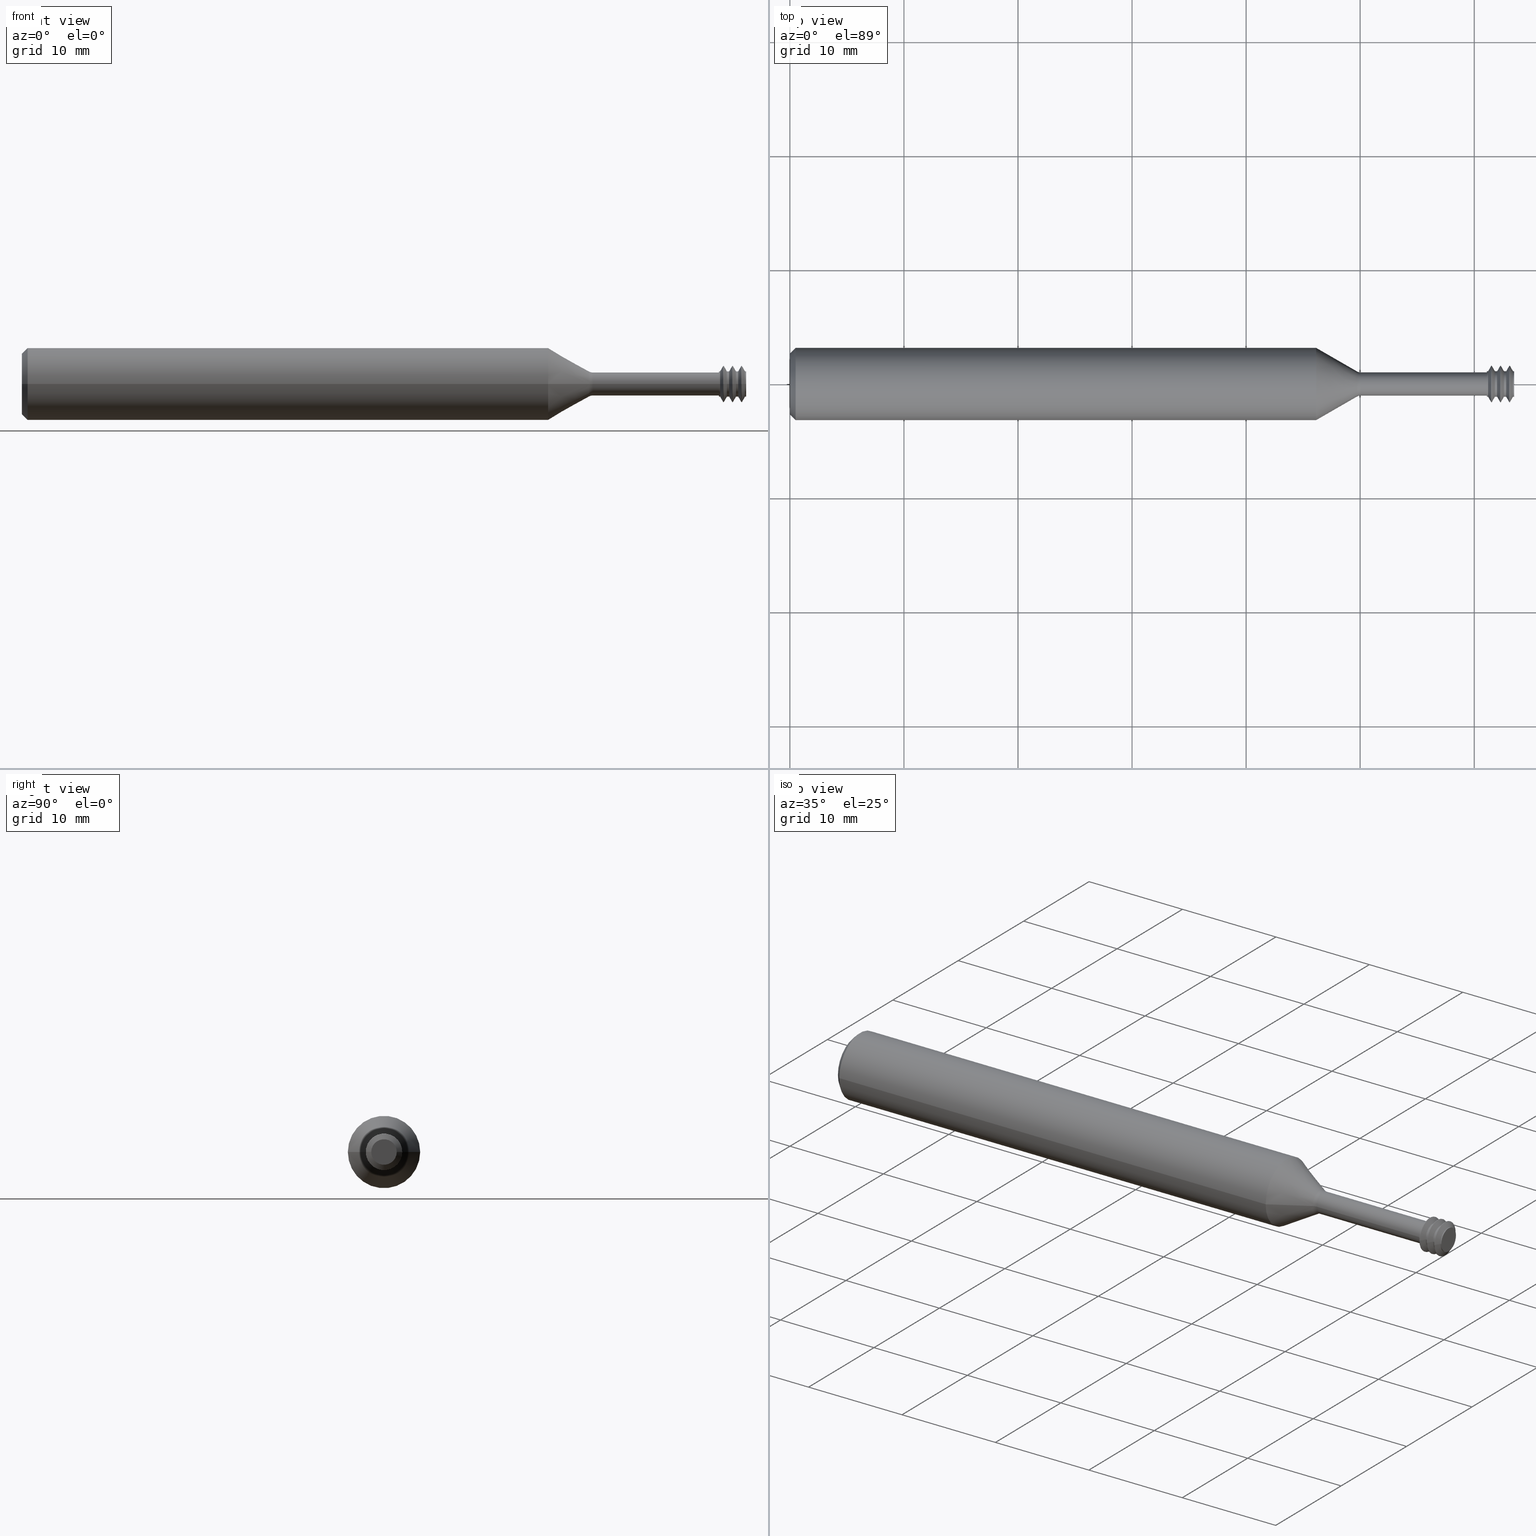
[diagram: canonical four-view strip — front | top / right | iso, engineering-drawing reading convention]
A machine part, canonical four-view strip (front | top / right | iso — engineering-drawing reading convention). The complete STEP part file that produces these views, byte-faithful:
ISO-10303-21;
HEADER;
FILE_DESCRIPTION (( 'STEP AP214' ),
    '1' );
FILE_NAME ('TMLR126-32EL.STEP',
    '2023-11-15T20:00:23',
    ( '' ),
    ( '' ),
    'SwSTEP 2.0',
    'SolidWorks 2022',
    '' );
FILE_SCHEMA (( 'AUTOMOTIVE_DESIGN' ));
ENDSEC;

DATA;
#1 = DIRECTION ( 'NONE',  ( 0.000000000000000000, -1.000000000000000000, 0.000000000000000000 ) ) ;
#2 = TOROIDAL_SURFACE ( 'NONE', #463, 0.06500000000000000222, 0.02499999999999991118 ) ;
#3 = EDGE_LOOP ( 'NONE', ( #629, #354, #592, #81 ) ) ;
#4 = CARTESIAN_POINT ( 'NONE',  ( 2.406000000000000139, -0.04000000000000004247, 0.000000000000000000 ) ) ;
#5 = DIRECTION ( 'NONE',  ( -1.000000000000000000, 3.312725351696573770E-18, -0.000000000000000000 ) ) ;
#6 = AXIS2_PLACEMENT_3D ( 'NONE', #46, #459, #40 ) ;
#7 = CARTESIAN_POINT ( 'NONE',  ( 1.816336759167003656, 0.1248500000000000026, 1.528971528735470422E-17 ) ) ;
#8 = VERTEX_POINT ( 'NONE', #958 ) ;
#9 = DIRECTION ( 'NONE',  ( 1.000000000000000000, -2.239313081137374464E-19, 0.000000000000000000 ) ) ;
#10 = DIRECTION ( 'NONE',  ( 0.000000000000000000, -1.000000000000000000, 0.000000000000000000 ) ) ;
#11 = COLOUR_RGB ( '',0.7529411764705882248, 0.7529411764705882248, 0.7529411764705882248 ) ;
#12 = DIRECTION ( 'NONE',  ( -1.000000000000000000, 3.312725351696573770E-18, -0.000000000000000000 ) ) ;
#13 = ORIENTED_EDGE ( 'NONE', *, *, #270, .F. ) ;
#14 = ADVANCED_FACE ( 'NONE', ( #410 ), #558, .T. ) ;
#15 = DIRECTION ( 'NONE',  ( -1.000000000000000000, 3.312725351696573770E-18, -0.000000000000000000 ) ) ;
#16 = DIRECTION ( 'NONE',  ( 0.000000000000000000, -1.000000000000000000, 0.000000000000000000 ) ) ;
#17 = VECTOR ( 'NONE', #507, 39.37007874015749564 ) ;
#18 = DIRECTION ( 'NONE',  ( -1.000000000000000000, 3.312725351696573770E-18, -0.000000000000000000 ) ) ;
#19 = ORIENTED_EDGE ( 'NONE', *, *, #45, .F. ) ;
#20 =( NAMED_UNIT ( * ) SI_UNIT ( $, .STERADIAN. ) SOLID_ANGLE_UNIT ( ) );
#21 = TOROIDAL_SURFACE ( 'NONE', #140, 0.06500000000000000222, 0.02499999999999991118 ) ;
#22 = DIRECTION ( 'NONE',  ( 0.000000000000000000, -1.000000000000000000, 0.000000000000000000 ) ) ;
#23 = LINE ( 'NONE', #576, #48 ) ;
#24 = ORIENTED_EDGE ( 'NONE', *, *, #872, .T. ) ;
#25 = CARTESIAN_POINT ( 'NONE',  ( 2.406000000000000139, -0.04398363154975865746, 0.000000000000000000 ) ) ;
#26 = ADVANCED_FACE ( 'NONE', ( #398 ), #150, .T. ) ;
#27 = DIRECTION ( 'NONE',  ( 0.7071067811865486830, 0.7071067811865462405, 0.000000000000000000 ) ) ;
#28 = EDGE_CURVE ( 'NONE', #118, #49, #745, .T. ) ;
#29 = CYLINDRICAL_SURFACE ( 'NONE', #970, 0.1248500000000000026 ) ;
#30 = EDGE_LOOP ( 'NONE', ( #361, #968, #144, #905 ) ) ;
#31 = DIRECTION ( 'NONE',  ( -1.000000000000000000, 3.312725351696573770E-18, -0.000000000000000000 ) ) ;
#32 = DIRECTION ( 'NONE',  ( -1.000000000000000000, 2.239313081137374464E-19, -0.000000000000000000 ) ) ;
#33 = AXIS2_PLACEMENT_3D ( 'NONE', #484, #702, #556 ) ;
#34 = ORIENTED_EDGE ( 'NONE', *, *, #746, .T. ) ;
#35 = DIRECTION ( 'NONE',  ( 1.000000000000000000, -2.239313081137374464E-19, 0.000000000000000000 ) ) ;
#36 = DIRECTION ( 'NONE',  ( 0.000000000000000000, 1.000000000000000000, 0.000000000000000000 ) ) ;
#37 = ORIENTED_EDGE ( 'NONE', *, *, #1031, .F. ) ;
#38 = DIRECTION ( 'NONE',  ( -1.000000000000000000, 3.312725351696573770E-18, -0.000000000000000000 ) ) ;
#39 = VECTOR ( 'NONE', #921, 39.37007874015749564 ) ;
#40 = DIRECTION ( 'NONE',  ( 0.000000000000000000, -1.000000000000000000, 0.000000000000000000 ) ) ;
#41 = ORIENTED_EDGE ( 'NONE', *, *, #455, .T. ) ;
#42 = VECTOR ( 'NONE', #480, 39.37007874015748143 ) ;
#43 = LINE ( 'NONE', #129, #307 ) ;
#44 = ADVANCED_FACE ( 'NONE', ( #222 ), #155, .T. ) ;
#45 = EDGE_CURVE ( 'NONE', #763, #133, #813, .T. ) ;
#46 = CARTESIAN_POINT ( 'NONE',  ( 2.433593750000000000, 3.704869181675997617E-18, 0.000000000000000000 ) ) ;
#47 = ORIENTED_EDGE ( 'NONE', *, *, #720, .T. ) ;
#48 = VECTOR ( 'NONE', #418, 39.37007874015748854 ) ;
#49 = VERTEX_POINT ( 'NONE', #7 ) ;
#50 = CIRCLE ( 'NONE', #422, 0.04398363154975865746 ) ;
#51 = ORIENTED_EDGE ( 'NONE', *, *, #488, .T. ) ;
#52 = CIRCLE ( 'NONE', #316, 0.04398363154975865746 ) ;
#53 = DIRECTION ( 'NONE',  ( 0.4962165036752285152, 0.8681988144891306103, 0.000000000000000000 ) ) ;
#54 = AXIS2_PLACEMENT_3D ( 'NONE', #405, #68, #952 ) ;
#55 = EDGE_CURVE ( 'NONE', #989, #916, #57, .T. ) ;
#56 = EDGE_LOOP ( 'NONE', ( #13, #292, #137, #759 ) ) ;
#57 = CIRCLE ( 'NONE', #604, 0.06299999999999998657 ) ;
#58 = LINE ( 'NONE', #453, #707 ) ;
#59 = EDGE_LOOP ( 'NONE', ( #694, #549, #257, #527 ) ) ;
#60 = CARTESIAN_POINT ( 'NONE',  ( 2.410156250000000444, 3.782511182106384973E-18, 0.000000000000000000 ) ) ;
#61 = ORIENTED_EDGE ( 'NONE', *, *, #301, .F. ) ;
#62 = DIRECTION ( 'NONE',  ( -1.000000000000000000, 3.312725351696573770E-18, -0.000000000000000000 ) ) ;
#63 = AXIS2_PLACEMENT_3D ( 'NONE', #649, #891, #16 ) ;
#64 = CYLINDRICAL_SURFACE ( 'NONE', #479, 0.06300000000000000044 ) ;
#65 = AXIS2_PLACEMENT_3D ( 'NONE', #232, #12, #873 ) ;
#66 = EDGE_CURVE ( 'NONE', #118, #393, #719, .T. ) ;
#67 = EDGE_LOOP ( 'NONE', ( #121, #662, #177, #457 ) ) ;
#68 = DIRECTION ( 'NONE',  ( 0.000000000000000000, 0.000000000000000000, 1.000000000000000000 ) ) ;
#69 = DIRECTION ( 'NONE',  ( -1.000000000000000000, 3.312725351696573770E-18, -0.000000000000000000 ) ) ;
#70 = CARTESIAN_POINT ( 'NONE',  ( 2.410156250000000444, 3.782511182106384973E-18, 0.000000000000000000 ) ) ;
#71 = VERTEX_POINT ( 'NONE', #85 ) ;
#72 = FACE_OUTER_BOUND ( 'NONE', #229, .T. ) ;
#73 = EDGE_CURVE ( 'NONE', #151, #583, #521, .T. ) ;
#74 = EDGE_CURVE ( 'NONE', #639, #71, #50, .T. ) ;
#75 = DIRECTION ( 'NONE',  ( -1.000000000000000000, 3.312725351696573770E-18, -0.000000000000000000 ) ) ;
#76 = DIRECTION ( 'NONE',  ( 0.000000000000000000, -1.000000000000000000, 0.000000000000000000 ) ) ;
#77 = EDGE_LOOP ( 'NONE', ( #851, #616, #377, #51 ) ) ;
#78 = CARTESIAN_POINT ( 'NONE',  ( -3.473392531253858003E-19, -0.1048499999999999988, 1.406506848820735372E-17 ) ) ;
#79 = VECTOR ( 'NONE', #308, 39.37007874015748143 ) ;
#80 = CARTESIAN_POINT ( 'NONE',  ( 1.970000000000000195, 5.240627950189079767E-18, 0.000000000000000000 ) ) ;
#81 = ORIENTED_EDGE ( 'NONE', *, *, #1012, .F. ) ;
#82 = ORIENTED_EDGE ( 'NONE', *, *, #350, .T. ) ;
#83 = DIRECTION ( 'NONE',  ( 0.000000000000000000, -1.000000000000000000, 0.000000000000000000 ) ) ;
#84 = AXIS2_PLACEMENT_3D ( 'NONE', #886, #403, #476 ) ;
#85 = CARTESIAN_POINT ( 'NONE',  ( 2.496093750000000000, -0.04398363154975865746, 0.000000000000000000 ) ) ;
#86 = ADVANCED_FACE ( 'NONE', ( #386 ), #21, .F. ) ;
#87 = ORIENTED_EDGE ( 'NONE', *, *, #335, .F. ) ;
#88 = DIRECTION ( 'NONE',  ( -1.000000000000000000, 3.312725351696573770E-18, -0.000000000000000000 ) ) ;
#89 = CARTESIAN_POINT ( 'NONE',  ( 2.406000000000000139, 3.796279696849373925E-18, 0.000000000000000000 ) ) ;
#90 = CIRCLE ( 'NONE', #389, 0.04000000000000004247 ) ;
#91 = DIRECTION ( 'NONE',  ( -1.000000000000000000, 3.312725351696573770E-18, -0.000000000000000000 ) ) ;
#92 = VERTEX_POINT ( 'NONE', #814 ) ;
#93 = CARTESIAN_POINT ( 'NONE',  ( 2.500000000000000000, 3.484883513789896644E-18, 0.000000000000000000 ) ) ;
#94 = CARTESIAN_POINT ( 'NONE',  ( 2.410156250000000444, -0.04398363154975865746, 0.000000000000000000 ) ) ;
#95 = CARTESIAN_POINT ( 'NONE',  ( 2.483525000000000205, 3.539460663959097280E-18, 0.000000000000000000 ) ) ;
#96 = EDGE_CURVE ( 'NONE', #828, #310, #756, .T. ) ;
#97 = ORIENTED_EDGE ( 'NONE', *, *, #114, .T. ) ;
#98 = FACE_OUTER_BOUND ( 'NONE', #686, .T. ) ;
#99 = VECTOR ( 'NONE', #106, 39.37007874015748143 ) ;
#100 = CARTESIAN_POINT ( 'NONE',  ( 2.500000000000000000, -7.991466739144648265E-18, 0.000000000000000000 ) ) ;
#101 = LINE ( 'NONE', #893, #99 ) ;
#102 = CIRCLE ( 'NONE', #485, 0.04398363154975865746 ) ;
#103 = ORIENTED_EDGE ( 'NONE', *, *, #475, .F. ) ;
#104 = DIRECTION ( 'NONE',  ( 0.000000000000000000, -1.000000000000000000, 0.000000000000000000 ) ) ;
#105 = DIRECTION ( 'NONE',  ( 0.000000000000000000, -1.000000000000000000, 0.000000000000000000 ) ) ;
#106 = DIRECTION ( 'NONE',  ( -1.000000000000000000, 3.312725351696573770E-18, -0.000000000000000000 ) ) ;
#107 = VERTEX_POINT ( 'NONE', #149 ) ;
#108 = DIRECTION ( 'NONE',  ( 0.000000000000000000, -1.000000000000000000, 0.000000000000000000 ) ) ;
#109 = ORIENTED_EDGE ( 'NONE', *, *, #182, .T. ) ;
#110 = CONICAL_SURFACE ( 'NONE', #771, 0.04398363154975865746, 1.051560874326560091 ) ;
#111 = CYLINDRICAL_SURFACE ( 'NONE', #953, 0.06300000000000000044 ) ;
#112 = ADVANCED_FACE ( 'NONE', ( #324 ), #967, .T. ) ;
#113 = ORIENTED_EDGE ( 'NONE', *, *, #1031, .T. ) ;
#114 = EDGE_CURVE ( 'NONE', #393, #979, #787, .T. ) ;
#115 = LINE ( 'NONE', #681, #426 ) ;
#116 = AXIS2_PLACEMENT_3D ( 'NONE', #870, #237, #464 ) ;
#117 = FACE_OUTER_BOUND ( 'NONE', #859, .T. ) ;
#118 = VERTEX_POINT ( 'NONE', #733 ) ;
#119 =( NAMED_UNIT ( * ) SI_UNIT ( $, .STERADIAN. ) SOLID_ANGLE_UNIT ( ) );
#120 = DIRECTION ( 'NONE',  ( 0.000000000000000000, -1.000000000000000000, 0.000000000000000000 ) ) ;
#121 = ORIENTED_EDGE ( 'NONE', *, *, #575, .F. ) ;
#122 = AXIS2_PLACEMENT_3D ( 'NONE', #226, #481, #718 ) ;
#123 =( LENGTH_UNIT ( ) NAMED_UNIT ( * ) SI_UNIT ( $, .METRE. ) );
#124 = VERTEX_POINT ( 'NONE', #313 ) ;
#125 = EDGE_CURVE ( 'NONE', #287, #997, #825, .T. ) ;
#126 = CIRCLE ( 'NONE', #362, 0.06299999999999998657 ) ;
#127 = DIRECTION ( 'NONE',  ( 0.000000000000000000, -1.000000000000000000, 0.000000000000000000 ) ) ;
#128 = EDGE_LOOP ( 'NONE', ( #912, #922, #187, #897 ) ) ;
#129 = CARTESIAN_POINT ( 'NONE',  ( 2.485225000000000684, -0.06299999999999998657, 0.000000000000000000 ) ) ;
#130 = AXIS2_PLACEMENT_3D ( 'NONE', #1007, #450, #688 ) ;
#131 = CARTESIAN_POINT ( 'NONE',  ( 1.970000000000000195, -0.04000000000000008410, 0.000000000000000000 ) ) ;
#132 = CLOSED_SHELL ( 'NONE', ( #517, #256, #347, #563, #443, #26, #768, #971, #223, #875, #14, #625, #44, #412, #682, #984, #548, #466, #206, #160, #824, #159, #641, #896, #281, #595, #520, #609, #837, #497, #721, #254, #822, #220, #235, #415, #86, #112, #734 ) ) ;
#133 = VERTEX_POINT ( 'NONE', #194 ) ;
#134 = VECTOR ( 'NONE', #736, 39.37007874015748854 ) ;
#135 = DIMENSIONAL_EXPONENTS ( 1.000000000000000000, 0.000000000000000000, 0.000000000000000000, 0.000000000000000000, 0.000000000000000000, 0.000000000000000000, 0.000000000000000000 ) ;
#136 = DIRECTION ( 'NONE',  ( 0.000000000000000000, 1.000000000000000000, 0.000000000000000000 ) ) ;
#137 = ORIENTED_EDGE ( 'NONE', *, *, #852, .T. ) ;
#138 = VECTOR ( 'NONE', #885, 39.37007874015749564 ) ;
#139 = LINE ( 'NONE', #384, #79 ) ;
#140 = AXIS2_PLACEMENT_3D ( 'NONE', #547, #708, #626 ) ;
#141 = APPLICATION_CONTEXT ( 'automotive_design' ) ;
#142 = DIRECTION ( 'NONE',  ( -3.312725351696573770E-18, -1.000000000000000000, 0.000000000000000000 ) ) ;
#143 = EDGE_CURVE ( 'NONE', #651, #612, #920, .T. ) ;
#144 = ORIENTED_EDGE ( 'NONE', *, *, #475, .T. ) ;
#145 = EDGE_CURVE ( 'NONE', #588, #314, #717, .T. ) ;
#146 = CARTESIAN_POINT ( 'NONE',  ( 2.441406250000000444, 3.678988514865866958E-18, 0.000000000000000000 ) ) ;
#147 = CIRCLE ( 'NONE', #773, 0.04398363154975865746 ) ;
#148 = CARTESIAN_POINT ( 'NONE',  ( 2.422725000000000684, 3.740874365342247740E-18, 0.000000000000000000 ) ) ;
#149 = CARTESIAN_POINT ( 'NONE',  ( 2.406000000000000139, -0.04398363154975865746, 0.000000000000000000 ) ) ;
#150 = CONICAL_SURFACE ( 'NONE', #504, 0.04398363154975865746, 1.051560874326560091 ) ;
#151 = VERTEX_POINT ( 'NONE', #508 ) ;
#152 = LINE ( 'NONE', #157, #693 ) ;
#153 = AXIS2_PLACEMENT_3D ( 'NONE', #980, #657, #251 ) ;
#154 = CARTESIAN_POINT ( 'NONE',  ( 2.500000000000000000, -7.991466739144648265E-18, 0.000000000000000000 ) ) ;
#155 = CYLINDRICAL_SURFACE ( 'NONE', #603, 0.04398363154975865746 ) ;
#156 = VERTEX_POINT ( 'NONE', #570 ) ;
#157 = CARTESIAN_POINT ( 'NONE',  ( 2.410156250000000444, -0.04398363154975865746, 5.386441359228848302E-18 ) ) ;
#158 = CIRCLE ( 'NONE', #122, 0.04334936490538921633 ) ;
#159 = ADVANCED_FACE ( 'NONE', ( #670 ), #329, .T. ) ;
#160 = ADVANCED_FACE ( 'NONE', ( #915 ), #176, .T. ) ;
#161 = DIRECTION ( 'NONE',  ( -1.000000000000000000, 3.312725351696573770E-18, -0.000000000000000000 ) ) ;
#162 = EDGE_CURVE ( 'NONE', #310, #828, #126, .T. ) ;
#163 = DIRECTION ( 'NONE',  ( -1.000000000000000000, 3.312725351696573770E-18, -0.000000000000000000 ) ) ;
#164 = AXIS2_PLACEMENT_3D ( 'NONE', #879, #18, #345 ) ;
#165 = ORIENTED_EDGE ( 'NONE', *, *, #143, .T. ) ;
#166 = DIRECTION ( 'NONE',  ( 0.000000000000000000, -1.000000000000000000, 0.000000000000000000 ) ) ;
#167 = DIRECTION ( 'NONE',  ( -1.000000000000000000, 2.239313081137374464E-19, -0.000000000000000000 ) ) ;
#168 = CONICAL_SURFACE ( 'NONE', #635, 0.1248499999999999888, 0.7853981633974466137 ) ;
#169 = DIRECTION ( 'NONE',  ( -1.000000000000000000, 3.312725351696573770E-18, -0.000000000000000000 ) ) ;
#170 = ORIENTED_EDGE ( 'NONE', *, *, #270, .T. ) ;
#171 = PRESENTATION_LAYER_ASSIGNMENT (  '', '', ( #216 ) ) ;
#172 = LINE ( 'NONE', #668, #134 ) ;
#173 = CARTESIAN_POINT ( 'NONE',  ( 0.02000000000000005940, 0.1248500000000000026, 0.000000000000000000 ) ) ;
#174 = EDGE_CURVE ( 'NONE', #843, #295, #650, .T. ) ;
#175 = AXIS2_PLACEMENT_3D ( 'NONE', #258, #829, #424 ) ;
#176 = CYLINDRICAL_SURFACE ( 'NONE', #434, 0.06300000000000000044 ) ;
#177 = ORIENTED_EDGE ( 'NONE', *, *, #488, .F. ) ;
#178 = DIRECTION ( 'NONE',  ( -1.000000000000000000, 3.312725351696573770E-18, -0.000000000000000000 ) ) ;
#179 = CARTESIAN_POINT ( 'NONE',  ( 2.453975000000000239, 3.637351698101730496E-18, 0.000000000000000000 ) ) ;
#180 = DIRECTION ( 'NONE',  ( -1.000000000000000000, 3.312725351696573770E-18, -0.000000000000000000 ) ) ;
#181 = EDGE_LOOP ( 'NONE', ( #200, #513, #406, #37 ) ) ;
#182 = EDGE_CURVE ( 'NONE', #49, #979, #101, .T. ) ;
#183 = PLANE ( 'NONE',  #204 ) ;
#184 = AXIS2_PLACEMENT_3D ( 'NONE', #249, #496, #747 ) ;
#185 = CARTESIAN_POINT ( 'NONE',  ( 2.496093750000000000, 0.04398363154975865746, 5.386441359228848302E-18 ) ) ;
#186 = DIRECTION ( 'NONE',  ( 0.000000000000000000, -1.000000000000000000, 0.000000000000000000 ) ) ;
#187 = ORIENTED_EDGE ( 'NONE', *, *, #335, .T. ) ;
#188 = CARTESIAN_POINT ( 'NONE',  ( 2.406000000000000139, 3.796279696849373925E-18, 0.000000000000000000 ) ) ;
#189 = CARTESIAN_POINT ( 'NONE',  ( 2.500000000000000000, 0.06299999999999998657, 7.715274834628325070E-18 ) ) ;
#190 = FACE_OUTER_BOUND ( 'NONE', #571, .T. ) ;
#191 = ORIENTED_EDGE ( 'NONE', *, *, #892, .F. ) ;
#192 = DIRECTION ( 'NONE',  ( -1.000000000000000000, 3.312725351696573770E-18, -0.000000000000000000 ) ) ;
#193 = EDGE_CURVE ( 'NONE', #763, #393, #23, .T. ) ;
#194 = CARTESIAN_POINT ( 'NONE',  ( 3.473392531253858485E-19, 0.1048500000000000265, 0.000000000000000000 ) ) ;
#195 = VECTOR ( 'NONE', #27, 39.37007874015748854 ) ;
#196 = ORIENTED_EDGE ( 'NONE', *, *, #73, .F. ) ;
#197 = DIRECTION ( 'NONE',  ( 0.000000000000000000, -1.000000000000000000, -1.224646799147353207E-16 ) ) ;
#198 = CONICAL_SURFACE ( 'NONE', #855, 0.1248499999999999888, 0.7853981633974466137 ) ;
#199 = CARTESIAN_POINT ( 'NONE',  ( 2.441406250000000444, 0.04398363154975865746, 0.000000000000000000 ) ) ;
#200 = ORIENTED_EDGE ( 'NONE', *, *, #73, .T. ) ;
#201 = CARTESIAN_POINT ( 'NONE',  ( 2.406000000000000139, 3.796279696849373925E-18, 0.000000000000000000 ) ) ;
#202 = EDGE_CURVE ( 'NONE', #8, #287, #739, .T. ) ;
#203 = ORIENTED_EDGE ( 'NONE', *, *, #246, .F. ) ;
#204 = AXIS2_PLACEMENT_3D ( 'NONE', #332, #589, #760 ) ;
#205 = LENGTH_MEASURE_WITH_UNIT ( LENGTH_MEASURE( 0.02539999999999999897 ), #123 );
#206 = ADVANCED_FACE ( 'NONE', ( #190 ), #111, .T. ) ;
#207 = CARTESIAN_POINT ( 'NONE',  ( 2.441406250000000444, -0.04398363154975865746, 5.386441359228848302E-18 ) ) ;
#208 = EDGE_LOOP ( 'NONE', ( #864, #165, #679, #772 ) ) ;
#209 = VECTOR ( 'NONE', #811, 39.37007874015748143 ) ;
#210 = DIRECTION ( 'NONE',  ( -0.4962165036752098635, 0.8681988144891413794, 1.063236899187653683E-16 ) ) ;
#211 = CARTESIAN_POINT ( 'NONE',  ( 2.453975000000000239, -0.06299999999999998657, 0.000000000000000000 ) ) ;
#212 = EDGE_LOOP ( 'NONE', ( #689, #109, #847, #788 ) ) ;
#213 = ORIENTED_EDGE ( 'NONE', *, *, #55, .F. ) ;
#214 = CIRCLE ( 'NONE', #502, 0.06299999999999998657 ) ;
#215 = CARTESIAN_POINT ( 'NONE',  ( 2.433593750000000000, 3.704869181675997617E-18, 0.000000000000000000 ) ) ;
#216 = STYLED_ITEM ( 'NONE', ( #1027 ), #339 ) ;
#217 = ORIENTED_EDGE ( 'NONE', *, *, #925, .F. ) ;
#218 =( NAMED_UNIT ( * ) PLANE_ANGLE_UNIT ( ) SI_UNIT ( $, .RADIAN. ) );
#219 = DIRECTION ( 'NONE',  ( -1.000000000000000000, 3.312725351696573770E-18, -0.000000000000000000 ) ) ;
#220 = ADVANCED_FACE ( 'NONE', ( #833 ), #198, .T. ) ;
#221 = EDGE_CURVE ( 'NONE', #997, #287, #264, .T. ) ;
#222 = FACE_OUTER_BOUND ( 'NONE', #781, .T. ) ;
#223 = ADVANCED_FACE ( 'NONE', ( #655 ), #978, .T. ) ;
#224 = DIRECTION ( 'NONE',  ( -1.000000000000000000, 3.312725351696573770E-18, -0.000000000000000000 ) ) ;
#225 = CIRCLE ( 'NONE', #33, 0.06299999999999998657 ) ;
#226 = CARTESIAN_POINT ( 'NONE',  ( 1.957500000000000462, 5.282037017085286357E-18, 0.000000000000000000 ) ) ;
#227 = VECTOR ( 'NONE', #911, 39.37007874015748854 ) ;
#228 = LINE ( 'NONE', #827, #378 ) ;
#229 = EDGE_LOOP ( 'NONE', ( #784, #799, #24, #748 ) ) ;
#230 = CYLINDRICAL_SURFACE ( 'NONE', #803, 0.04398363154975865746 ) ;
#231 = CARTESIAN_POINT ( 'NONE',  ( 2.406000000000000139, 3.796279696849373925E-18, 0.000000000000000000 ) ) ;
#232 = CARTESIAN_POINT ( 'NONE',  ( 2.483525000000000205, 3.539460663959097280E-18, 0.000000000000000000 ) ) ;
#233 = ORIENTED_EDGE ( 'NONE', *, *, #145, .F. ) ;
#234 = EDGE_CURVE ( 'NONE', #639, #916, #228, .T. ) ;
#235 = ADVANCED_FACE ( 'NONE', ( #421 ), #29, .T. ) ;
#236 = FACE_BOUND ( 'NONE', #985, .T. ) ;
#237 = DIRECTION ( 'NONE',  ( -1.000000000000000000, 3.312725351696573770E-18, -0.000000000000000000 ) ) ;
#238 = ORIENTED_EDGE ( 'NONE', *, *, #743, .T. ) ;
#239 = DIRECTION ( 'NONE',  ( -1.000000000000000000, 3.312725351696573770E-18, -0.000000000000000000 ) ) ;
#240 = AXIS2_PLACEMENT_3D ( 'NONE', #630, #955, #876 ) ;
#241 = DIRECTION ( 'NONE',  ( 0.000000000000000000, -1.000000000000000000, 0.000000000000000000 ) ) ;
#242 = CARTESIAN_POINT ( 'NONE',  ( 2.406000000000000139, 3.796279696849373925E-18, 0.000000000000000000 ) ) ;
#243 = AXIS2_PLACEMENT_3D ( 'NONE', #242, #169, #554 ) ;
#244 = ORIENTED_EDGE ( 'NONE', *, *, #758, .F. ) ;
#245 = FILL_AREA_STYLE_COLOUR ( '', #11 ) ;
#246 = EDGE_CURVE ( 'NONE', #156, #942, #902, .T. ) ;
#247 = CARTESIAN_POINT ( 'NONE',  ( 2.410156250000000444, 3.782511182106384973E-18, 0.000000000000000000 ) ) ;
#248 = AXIS2_PLACEMENT_3D ( 'NONE', #231, #219, #391 ) ;
#249 = CARTESIAN_POINT ( 'NONE',  ( 2.441406250000000444, 3.678988514865866958E-18, 0.000000000000000000 ) ) ;
#250 = ORIENTED_EDGE ( 'NONE', *, *, #846, .F. ) ;
#251 = DIRECTION ( 'NONE',  ( 0.000000000000000000, 1.000000000000000000, 0.000000000000000000 ) ) ;
#252 = DIRECTION ( 'NONE',  ( 0.000000000000000000, -1.000000000000000000, 0.000000000000000000 ) ) ;
#253 = CONICAL_SURFACE ( 'NONE', #590, 0.06299999999999998657, 1.051560874326581629 ) ;
#254 = ADVANCED_FACE ( 'NONE', ( #581 ), #110, .T. ) ;
#255 = DIRECTION ( 'NONE',  ( -1.000000000000000000, 3.312725351696573770E-18, -0.000000000000000000 ) ) ;
#256 = ADVANCED_FACE ( 'NONE', ( #941 ), #2, .F. ) ;
#257 = ORIENTED_EDGE ( 'NONE', *, *, #660, .T. ) ;
#258 = CARTESIAN_POINT ( 'NONE',  ( 2.500000000000000000, -7.991466739144648265E-18, 0.000000000000000000 ) ) ;
#259 = CARTESIAN_POINT ( 'NONE',  ( 2.472656250000000444, -0.04398363154975865746, 5.386441359228848302E-18 ) ) ;
#260 = CONICAL_SURFACE ( 'NONE', #646, 0.06299999999999998657, 1.051560874326581629 ) ;
#261 = DIRECTION ( 'NONE',  ( -1.000000000000000000, 3.312725351696573770E-18, -0.000000000000000000 ) ) ;
#262 = ORIENTED_EDGE ( 'NONE', *, *, #442, .T. ) ;
#263 = DIRECTION ( 'NONE',  ( 0.4962165036752285152, 0.8681988144891306103, 0.000000000000000000 ) ) ;
#264 = CIRCLE ( 'NONE', #330, 0.06299999999999998657 ) ;
#265 = LINE ( 'NONE', #259, #17 ) ;
#266 = DIRECTION ( 'NONE',  ( -1.000000000000000000, 0.000000000000000000, 0.000000000000000000 ) ) ;
#267 = AXIS2_PLACEMENT_3D ( 'NONE', #637, #161, #1030 ) ;
#268 = ORIENTED_EDGE ( 'NONE', *, *, #919, .F. ) ;
#269 = DIRECTION ( 'NONE',  ( 0.000000000000000000, 1.000000000000000000, 0.000000000000000000 ) ) ;
#270 = EDGE_CURVE ( 'NONE', #884, #639, #924, .T. ) ;
#271 = EDGE_CURVE ( 'NONE', #309, #874, #737, .T. ) ;
#272 = DIRECTION ( 'NONE',  ( -1.000000000000000000, 3.312725351696573770E-18, -0.000000000000000000 ) ) ;
#273 = AXIS2_PLACEMENT_3D ( 'NONE', #349, #192, #104 ) ;
#274 = ORIENTED_EDGE ( 'NONE', *, *, #376, .T. ) ;
#275 = DIRECTION ( 'NONE',  ( 0.000000000000000000, -1.000000000000000000, 0.000000000000000000 ) ) ;
#276 = DIRECTION ( 'NONE',  ( -1.000000000000000000, 3.312725351696573770E-18, -0.000000000000000000 ) ) ;
#277 = AXIS2_PLACEMENT_3D ( 'NONE', #401, #469, #407 ) ;
#278 = EDGE_LOOP ( 'NONE', ( #676, #433 ) ) ;
#279 = DIRECTION ( 'NONE',  ( -1.000000000000000000, 3.312725351696573770E-18, -0.000000000000000000 ) ) ;
#280 = AXIS2_PLACEMENT_3D ( 'NONE', #531, #774, #120 ) ;
#281 = ADVANCED_FACE ( 'NONE', ( #996 ), #934, .T. ) ;
#282 = CARTESIAN_POINT ( 'NONE',  ( 1.970000000000000195, 0.000000000000000000, 0.000000000000000000 ) ) ;
#283 = EDGE_LOOP ( 'NONE', ( #793, #381, #447, #1016 ) ) ;
#284 = VECTOR ( 'NONE', #317, 39.37007874015748143 ) ;
#285 = FACE_OUTER_BOUND ( 'NONE', #993, .T. ) ;
#286 = DIRECTION ( 'NONE',  ( 0.000000000000000000, -1.000000000000000000, 0.000000000000000000 ) ) ;
#287 = VERTEX_POINT ( 'NONE', #211 ) ;
#288 = CIRCLE ( 'NONE', #536, 0.02499999999999991118 ) ;
#289 = CARTESIAN_POINT ( 'NONE',  ( 2.500000000000000000, -0.06300000000000001432, 0.000000000000000000 ) ) ;
#290 = ORIENTED_EDGE ( 'NONE', *, *, #530, .T. ) ;
#291 = DIRECTION ( 'NONE',  ( 1.000000000000000000, -3.312725351696573770E-18, 0.000000000000000000 ) ) ;
#292 = ORIENTED_EDGE ( 'NONE', *, *, #973, .F. ) ;
#293 = VECTOR ( 'NONE', #343, 39.37007874015748854 ) ;
#294 = DIRECTION ( 'NONE',  ( 1.000000000000000000, -2.239313081137374464E-19, 0.000000000000000000 ) ) ;
#295 = VERTEX_POINT ( 'NONE', #535 ) ;
#296 = DIRECTION ( 'NONE',  ( 1.000000000000000000, -2.239313081137374464E-19, 0.000000000000000000 ) ) ;
#297 = ORIENTED_EDGE ( 'NONE', *, *, #363, .T. ) ;
#298 = VERTEX_POINT ( 'NONE', #444 ) ;
#299 = AXIS2_PLACEMENT_3D ( 'NONE', #802, #5, #564 ) ;
#300 = EDGE_CURVE ( 'NONE', #133, #763, #582, .T. ) ;
#301 = EDGE_CURVE ( 'NONE', #577, #667, #102, .T. ) ;
#302 = DIRECTION ( 'NONE',  ( 0.000000000000000000, 1.000000000000000000, 0.000000000000000000 ) ) ;
#303 =( GEOMETRIC_REPRESENTATION_CONTEXT ( 3 ) GLOBAL_UNCERTAINTY_ASSIGNED_CONTEXT ( ( #950 ) ) GLOBAL_UNIT_ASSIGNED_CONTEXT ( ( #1017, #218, #119 ) ) REPRESENTATION_CONTEXT ( 'NONE', 'WORKASPACE' ) );
#304 = ORIENTED_EDGE ( 'NONE', *, *, #705, .F. ) ;
#305 = SURFACE_SIDE_STYLE ('',( #559 ) ) ;
#306 = ORIENTED_EDGE ( 'NONE', *, *, #74, .T. ) ;
#307 = VECTOR ( 'NONE', #613, 39.37007874015748854 ) ;
#308 = DIRECTION ( 'NONE',  ( -1.000000000000000000, 2.239313081137374464E-19, -0.000000000000000000 ) ) ;
#309 = VERTEX_POINT ( 'NONE', #858 ) ;
#310 = VERTEX_POINT ( 'NONE', #522 ) ;
#311 = LINE ( 'NONE', #567, #542 ) ;
#312 = CARTESIAN_POINT ( 'NONE',  ( 2.406000000000000139, 0.04398363154975865746, 5.386441359228848302E-18 ) ) ;
#313 = CARTESIAN_POINT ( 'NONE',  ( 2.464843750000000000, 0.04398363154975865746, 5.386441359228848302E-18 ) ) ;
#314 = VERTEX_POINT ( 'NONE', #131 ) ;
#315 = SURFACE_STYLE_USAGE ( .BOTH. , #817 ) ;
#316 = AXIS2_PLACEMENT_3D ( 'NONE', #215, #516, #853 ) ;
#317 = DIRECTION ( 'NONE',  ( -1.000000000000000000, 3.312725351696573770E-18, -0.000000000000000000 ) ) ;
#318 = CARTESIAN_POINT ( 'NONE',  ( 2.472656250000000444, 3.575465847625348943E-18, 0.000000000000000000 ) ) ;
#319 = ORIENTED_EDGE ( 'NONE', *, *, #518, .T. ) ;
#320 = CARTESIAN_POINT ( 'NONE',  ( 2.464843750000000000, 3.601346514435479603E-18, 0.000000000000000000 ) ) ;
#321 = VECTOR ( 'NONE', #808, 39.37007874015748143 ) ;
#322 = STYLED_ITEM ( 'NONE', ( #1023 ), #791 ) ;
#323 = FACE_OUTER_BOUND ( 'NONE', #325, .T. ) ;
#324 = FACE_OUTER_BOUND ( 'NONE', #767, .T. ) ;
#325 = EDGE_LOOP ( 'NONE', ( #19, #715, #97, #467 ) ) ;
#326 = LINE ( 'NONE', #543, #209 ) ;
#327 = AXIS2_PLACEMENT_3D ( 'NONE', #100, #420, #105 ) ;
#328 = DIRECTION ( 'NONE',  ( -1.000000000000000000, 3.312725351696573770E-18, -0.000000000000000000 ) ) ;
#329 = CYLINDRICAL_SURFACE ( 'NONE', #544, 0.04398363154975865746 ) ;
#330 = AXIS2_PLACEMENT_3D ( 'NONE', #992, #180, #336 ) ;
#331 = ORIENTED_EDGE ( 'NONE', *, *, #846, .T. ) ;
#332 = CARTESIAN_POINT ( 'NONE',  ( 1.828541742163614243E-19, 0.1048500000000000126, 0.000000000000000000 ) ) ;
#333 = EDGE_CURVE ( 'NONE', #612, #874, #1010, .T. ) ;
#334 = FACE_OUTER_BOUND ( 'NONE', #212, .T. ) ;
#335 = EDGE_CURVE ( 'NONE', #651, #309, #368, .T. ) ;
#336 = DIRECTION ( 'NONE',  ( 0.000000000000000000, -1.000000000000000000, 0.000000000000000000 ) ) ;
#337 = ORIENTED_EDGE ( 'NONE', *, *, #66, .T. ) ;
#338 = DIRECTION ( 'NONE',  ( -1.000000000000000000, 2.239313081137374464E-19, -0.000000000000000000 ) ) ;
#339 = ADVANCED_BREP_SHAPE_REPRESENTATION ( 'TMLR126-32EL', ( #791, #54 ), #303 ) ;
#340 = LINE ( 'NONE', #659, #293 ) ;
#341 = CARTESIAN_POINT ( 'NONE',  ( 2.406000000000000139, 3.796279696849373925E-18, 0.000000000000000000 ) ) ;
#342 = EDGE_LOOP ( 'NONE', ( #770, #290, #959, #805 ) ) ;
#343 = DIRECTION ( 'NONE',  ( -0.8660254037844379305, 0.5000000000000009992, 6.123233995736778362E-17 ) ) ;
#344 = AXIS2_PLACEMENT_3D ( 'NONE', #869, #9, #881 ) ;
#345 = DIRECTION ( 'NONE',  ( 0.000000000000000000, -1.000000000000000000, 0.000000000000000000 ) ) ;
#346 = EDGE_CURVE ( 'NONE', #107, #462, #147, .T. ) ;
#347 = ADVANCED_FACE ( 'NONE', ( #117 ), #402, .T. ) ;
#348 = ORIENTED_EDGE ( 'NONE', *, *, #925, .T. ) ;
#349 = CARTESIAN_POINT ( 'NONE',  ( 2.464843750000000000, 3.601346514435479603E-18, 0.000000000000000000 ) ) ;
#350 = EDGE_CURVE ( 'NONE', #1008, #843, #52, .T. ) ;
#351 = ORIENTED_EDGE ( 'NONE', *, *, #500, .F. ) ;
#352 = CARTESIAN_POINT ( 'NONE',  ( 2.374750000000000139, 3.899802364089891940E-18, 0.000000000000000000 ) ) ;
#353 = AXIS2_PLACEMENT_3D ( 'NONE', #961, #69, #790 ) ;
#354 = ORIENTED_EDGE ( 'NONE', *, *, #789, .T. ) ;
#355 = CARTESIAN_POINT ( 'NONE',  ( 2.343500000000000139, 4.003325031330409955E-18, 0.000000000000000000 ) ) ;
#356 = DIRECTION ( 'NONE',  ( -1.000000000000000000, 3.312725351696573770E-18, -0.000000000000000000 ) ) ;
#357 = ORIENTED_EDGE ( 'NONE', *, *, #862, .T. ) ;
#358 = EDGE_CURVE ( 'NONE', #696, #314, #605, .T. ) ;
#359 = CARTESIAN_POINT ( 'NONE',  ( 2.422725000000000684, 3.740874365342247740E-18, 0.000000000000000000 ) ) ;
#360 = CARTESIAN_POINT ( 'NONE',  ( 2.500000000000000000, -0.04398363154975865746, 0.000000000000000000 ) ) ;
#361 = ORIENTED_EDGE ( 'NONE', *, *, #653, .F. ) ;
#362 = AXIS2_PLACEMENT_3D ( 'NONE', #95, #666, #512 ) ;
#363 = EDGE_CURVE ( 'NONE', #71, #639, #907, .T. ) ;
#364 = CARTESIAN_POINT ( 'NONE',  ( 0.02000000000000005940, -0.1248499999999999610, 1.528971528735470422E-17 ) ) ;
#365 = ORIENTED_EDGE ( 'NONE', *, *, #746, .F. ) ;
#366 = AXIS2_PLACEMENT_3D ( 'NONE', #726, #75, #10 ) ;
#367 = FILL_AREA_STYLE_COLOUR ( '', #910 ) ;
#368 = LINE ( 'NONE', #199, #742 ) ;
#369 = ORIENTED_EDGE ( 'NONE', *, *, #246, .T. ) ;
#370 = DIRECTION ( 'NONE',  ( -1.000000000000000000, 3.312725351696573770E-18, -0.000000000000000000 ) ) ;
#371 = ORIENTED_EDGE ( 'NONE', *, *, #221, .F. ) ;
#372 = DIRECTION ( 'NONE',  ( -3.312725351696573770E-18, -1.000000000000000000, 0.000000000000000000 ) ) ;
#373 = ORIENTED_EDGE ( 'NONE', *, *, #786, .T. ) ;
#374 = AXIS2_PLACEMENT_3D ( 'NONE', #179, #744, #585 ) ;
#375 = CARTESIAN_POINT ( 'NONE',  ( 2.312250000000000139, -0.04398363154975865746, 0.000000000000000000 ) ) ;
#376 = EDGE_CURVE ( 'NONE', #843, #1008, #991, .T. ) ;
#377 = ORIENTED_EDGE ( 'NONE', *, *, #145, .T. ) ;
#378 = VECTOR ( 'NONE', #900, 39.37007874015748854 ) ;
#379 = DIMENSIONAL_EXPONENTS ( 1.000000000000000000, 0.000000000000000000, 0.000000000000000000, 0.000000000000000000, 0.000000000000000000, 0.000000000000000000, 0.000000000000000000 ) ;
#380 = CARTESIAN_POINT ( 'NONE',  ( 2.406000000000000139, 0.04000000000000004247, 4.898587196589418160E-18 ) ) ;
#381 = ORIENTED_EDGE ( 'NONE', *, *, #413, .F. ) ;
#382 = VERTEX_POINT ( 'NONE', #360 ) ;
#383 = CARTESIAN_POINT ( 'NONE',  ( 2.312250000000000139, 4.106847698570927969E-18, 0.000000000000000000 ) ) ;
#384 = CARTESIAN_POINT ( 'NONE',  ( 2.500000000000000000, 0.06299999999999998657, 7.715274834628325070E-18 ) ) ;
#385 = MECHANICAL_DESIGN_GEOMETRIC_PRESENTATION_REPRESENTATION (  '', ( #216 ), #890 ) ;
#386 = FACE_OUTER_BOUND ( 'NONE', #77, .T. ) ;
#387 = ORIENTED_EDGE ( 'NONE', *, *, #358, .T. ) ;
#388 = EDGE_CURVE ( 'NONE', #888, #588, #586, .T. ) ;
#389 = AXIS2_PLACEMENT_3D ( 'NONE', #188, #35, #618 ) ;
#390 = CYLINDRICAL_SURFACE ( 'NONE', #240, 0.04398363154975865746 ) ;
#391 = DIRECTION ( 'NONE',  ( 0.000000000000000000, -1.000000000000000000, 0.000000000000000000 ) ) ;
#392 = UNCERTAINTY_MEASURE_WITH_UNIT (LENGTH_MEASURE( 1.000000000000000082E-05 ), #840, 'distance_accuracy_value', 'NONE');
#393 = VERTEX_POINT ( 'NONE', #364 ) ;
#394 = ORIENTED_EDGE ( 'NONE', *, *, #28, .F. ) ;
#395 = CONICAL_SURFACE ( 'NONE', #374, 0.06299999999999998657, 1.051560874326581629 ) ;
#396 = LINE ( 'NONE', #716, #42 ) ;
#397 = FACE_OUTER_BOUND ( 'NONE', #472, .T. ) ;
#398 = FACE_OUTER_BOUND ( 'NONE', #1004, .T. ) ;
#399 = SHAPE_DEFINITION_REPRESENTATION ( #449, #339 ) ;
#400 = ORIENTED_EDGE ( 'NONE', *, *, #376, .F. ) ;
#401 = CARTESIAN_POINT ( 'NONE',  ( 2.374750000000000139, 3.899802364089891940E-18, 0.000000000000000000 ) ) ;
#402 = CONICAL_SURFACE ( 'NONE', #1006, 0.04334936490538920245, 0.5235987755983001479 ) ;
#403 = DIRECTION ( 'NONE',  ( -1.000000000000000000, 2.239313081137374464E-19, -0.000000000000000000 ) ) ;
#404 = CARTESIAN_POINT ( 'NONE',  ( 0.000000000000000000, 1.176669689303133088E-17, 0.000000000000000000 ) ) ;
#405 = CARTESIAN_POINT ( 'NONE',  ( 0.000000000000000000, 0.000000000000000000, 0.000000000000000000 ) ) ;
#406 = ORIENTED_EDGE ( 'NONE', *, *, #704, .F. ) ;
#407 = DIRECTION ( 'NONE',  ( 0.000000000000000000, -1.000000000000000000, 0.000000000000000000 ) ) ;
#408 = CIRCLE ( 'NONE', #153, 0.04398363154975865746 ) ;
#409 = DIRECTION ( 'NONE',  ( 0.000000000000000000, 1.000000000000000000, 0.000000000000000000 ) ) ;
#410 = FACE_OUTER_BOUND ( 'NONE', #451, .T. ) ;
#411 = ORIENTED_EDGE ( 'NONE', *, *, #789, .F. ) ;
#412 = ADVANCED_FACE ( 'NONE', ( #684 ), #699, .T. ) ;
#413 = EDGE_CURVE ( 'NONE', #583, #151, #683, .T. ) ;
#414 =( NAMED_UNIT ( * ) PLANE_ANGLE_UNIT ( ) SI_UNIT ( $, .RADIAN. ) );
#415 = ADVANCED_FACE ( 'NONE', ( #949 ), #830, .T. ) ;
#416 = CONICAL_SURFACE ( 'NONE', #63, 0.06299999999999998657, 1.051560874326581629 ) ;
#417 = CARTESIAN_POINT ( 'NONE',  ( 2.441406250000000444, -0.04398363154975865746, 6.550858096928585915E-18 ) ) ;
#418 = DIRECTION ( 'NONE',  ( 0.7071067811865486830, -0.7071067811865462405, 8.659560562354916834E-17 ) ) ;
#419 = EDGE_LOOP ( 'NONE', ( #619, #306, #975, #244 ) ) ;
#420 = DIRECTION ( 'NONE',  ( -1.000000000000000000, 2.239313081137374464E-19, -0.000000000000000000 ) ) ;
#421 = FACE_OUTER_BOUND ( 'NONE', #483, .T. ) ;
#422 = AXIS2_PLACEMENT_3D ( 'NONE', #471, #727, #638 ) ;
#423 = ORIENTED_EDGE ( 'NONE', *, *, #703, .F. ) ;
#424 = DIRECTION ( 'NONE',  ( 2.239313081137374464E-19, 1.000000000000000000, 0.000000000000000000 ) ) ;
#425 = CARTESIAN_POINT ( 'NONE',  ( 2.410156250000000444, 0.04398363154975865746, 5.386441359228848302E-18 ) ) ;
#426 = VECTOR ( 'NONE', #370, 39.37007874015748143 ) ;
#427 = EDGE_CURVE ( 'NONE', #942, #156, #214, .T. ) ;
#428 = EDGE_CURVE ( 'NONE', #298, #560, #624, .T. ) ;
#429 = DIRECTION ( 'NONE',  ( -0.4962165036752098635, -0.8681988144891413794, 0.000000000000000000 ) ) ;
#430 = EDGE_LOOP ( 'NONE', ( #926, #935, #656, #233 ) ) ;
#431 = CARTESIAN_POINT ( 'NONE',  ( 2.452275000000000205, -0.06299999999999998657, 0.000000000000000000 ) ) ;
#432 = CARTESIAN_POINT ( 'NONE',  ( 0.02000000000000005940, 1.170044238599739941E-17, 0.000000000000000000 ) ) ;
#433 = ORIENTED_EDGE ( 'NONE', *, *, #872, .F. ) ;
#434 = AXIS2_PLACEMENT_3D ( 'NONE', #974, #32, #819 ) ;
#435 = FACE_OUTER_BOUND ( 'NONE', #753, .T. ) ;
#436 = DIRECTION ( 'NONE',  ( 0.000000000000000000, -1.000000000000000000, 0.000000000000000000 ) ) ;
#437 = EDGE_LOOP ( 'NONE', ( #304, #735, #113, #250 ) ) ;
#438 = DIRECTION ( 'NONE',  ( -1.000000000000000000, 3.312725351696573770E-18, -0.000000000000000000 ) ) ;
#439 = CARTESIAN_POINT ( 'NONE',  ( 2.496093750000000000, 3.497823847194961588E-18, 0.000000000000000000 ) ) ;
#440 = AXIS2_PLACEMENT_3D ( 'NONE', #928, #936, #856 ) ;
#441 = ORIENTED_EDGE ( 'NONE', *, *, #221, .T. ) ;
#442 = EDGE_CURVE ( 'NONE', #874, #309, #568, .T. ) ;
#443 = ADVANCED_FACE ( 'NONE', ( #323 ), #168, .T. ) ;
#444 = CARTESIAN_POINT ( 'NONE',  ( 2.406000000000000139, 0.04000000000000004247, 4.898587196589418160E-18 ) ) ;
#445 = ORIENTED_EDGE ( 'NONE', *, *, #653, .T. ) ;
#446 = APPLICATION_PROTOCOL_DEFINITION ( 'draft international standard', 'automotive_design', 1998, #141 ) ;
#447 = ORIENTED_EDGE ( 'NONE', *, *, #908, .T. ) ;
#448 = AXIS2_PLACEMENT_3D ( 'NONE', #842, #261, #762 ) ;
#449 = PRODUCT_DEFINITION_SHAPE ( 'NONE', 'NONE',  #640 ) ;
#450 = DIRECTION ( 'NONE',  ( -1.000000000000000000, 3.312725351696573770E-18, -0.000000000000000000 ) ) ;
#451 = EDGE_LOOP ( 'NONE', ( #555, #445, #634, #103 ) ) ;
#452 = AXIS2_PLACEMENT_3D ( 'NONE', #439, #525, #127 ) ;
#453 = CARTESIAN_POINT ( 'NONE',  ( 2.374750000000000139, -0.04398363154975865746, 0.000000000000000000 ) ) ;
#454 = DIRECTION ( 'NONE',  ( 0.000000000000000000, 1.000000000000000000, 0.000000000000000000 ) ) ;
#455 = EDGE_CURVE ( 'NONE', #49, #118, #957, .T. ) ;
#456 = CIRCLE ( 'NONE', #778, 0.04000000000000009104 ) ;
#457 = ORIENTED_EDGE ( 'NONE', *, *, #358, .F. ) ;
#458 = FACE_OUTER_BOUND ( 'NONE', #614, .T. ) ;
#459 = DIRECTION ( 'NONE',  ( -1.000000000000000000, 3.312725351696573770E-18, -0.000000000000000000 ) ) ;
#460 = ORIENTED_EDGE ( 'NONE', *, *, #363, .F. ) ;
#461 = DIMENSIONAL_EXPONENTS ( 1.000000000000000000, 0.000000000000000000, 0.000000000000000000, 0.000000000000000000, 0.000000000000000000, 0.000000000000000000, 0.000000000000000000 ) ;
#462 = VERTEX_POINT ( 'NONE', #312 ) ;
#463 = AXIS2_PLACEMENT_3D ( 'NONE', #282, #356, #372 ) ;
#464 = DIRECTION ( 'NONE',  ( 0.000000000000000000, -1.000000000000000000, 0.000000000000000000 ) ) ;
#465 = PRODUCT_DEFINITION_CONTEXT ( 'detailed design', #538, 'design' ) ;
#466 = ADVANCED_FACE ( 'NONE', ( #632 ), #553, .T. ) ;
#467 = ORIENTED_EDGE ( 'NONE', *, *, #660, .F. ) ;
#468 = ORIENTED_EDGE ( 'NONE', *, *, #518, .F. ) ;
#469 = DIRECTION ( 'NONE',  ( -1.000000000000000000, 3.312725351696573770E-18, -0.000000000000000000 ) ) ;
#470 = DIRECTION ( 'NONE',  ( -1.000000000000000000, 3.312725351696573770E-18, -0.000000000000000000 ) ) ;
#471 = CARTESIAN_POINT ( 'NONE',  ( 2.496093750000000000, 3.497823847194961588E-18, 0.000000000000000000 ) ) ;
#472 = EDGE_LOOP ( 'NONE', ( #868, #82, #931, #816 ) ) ;
#473 = VECTOR ( 'NONE', #178, 39.37007874015748143 ) ;
#474 = DIRECTION ( 'NONE',  ( 0.000000000000000000, -1.000000000000000000, 0.000000000000000000 ) ) ;
#475 = EDGE_CURVE ( 'NONE', #989, #828, #956, .T. ) ;
#476 = DIRECTION ( 'NONE',  ( 0.000000000000000000, -1.000000000000000000, 0.000000000000000000 ) ) ;
#477 = DIRECTION ( 'NONE',  ( -1.000000000000000000, 3.312725351696573770E-18, -0.000000000000000000 ) ) ;
#478 = ORIENTED_EDGE ( 'NONE', *, *, #685, .T. ) ;
#479 = AXIS2_PLACEMENT_3D ( 'NONE', #154, #545, #865 ) ;
#480 = DIRECTION ( 'NONE',  ( -1.000000000000000000, 2.239313081137374464E-19, -0.000000000000000000 ) ) ;
#481 = DIRECTION ( 'NONE',  ( -1.000000000000000000, 3.312725351696573770E-18, -0.000000000000000000 ) ) ;
#482 = CARTESIAN_POINT ( 'NONE',  ( 2.485225000000000684, 3.533829030861211711E-18, 0.000000000000000000 ) ) ;
#483 = EDGE_LOOP ( 'NONE', ( #954, #41, #337, #351 ) ) ;
#484 = CARTESIAN_POINT ( 'NONE',  ( 2.422725000000000684, 3.740874365342247740E-18, 0.000000000000000000 ) ) ;
#485 = AXIS2_PLACEMENT_3D ( 'NONE', #60, #779, #692 ) ;
#486 = CYLINDRICAL_SURFACE ( 'NONE', #327, 0.06300000000000000044 ) ;
#487 = DIRECTION ( 'NONE',  ( 1.000000000000000000, -3.312725351696573770E-18, 0.000000000000000000 ) ) ;
#488 = EDGE_CURVE ( 'NONE', #314, #560, #857, .T. ) ;
#489 = ORIENTED_EDGE ( 'NONE', *, *, #627, .T. ) ;
#490 = SURFACE_STYLE_FILL_AREA ( #889 ) ;
#491 = FACE_OUTER_BOUND ( 'NONE', #723, .T. ) ;
#492 = DIRECTION ( 'NONE',  ( 0.000000000000000000, -0.000000000000000000, -1.000000000000000000 ) ) ;
#493 = EDGE_LOOP ( 'NONE', ( #730, #348, #797, #597 ) ) ;
#494 = DIRECTION ( 'NONE',  ( 1.000000000000000000, -3.312725351696573770E-18, 0.000000000000000000 ) ) ;
#495 = LINE ( 'NONE', #189, #983 ) ;
#496 = DIRECTION ( 'NONE',  ( -1.000000000000000000, 3.312725351696573770E-18, -0.000000000000000000 ) ) ;
#497 = ADVANCED_FACE ( 'NONE', ( #397 ), #669, .T. ) ;
#498 = EDGE_LOOP ( 'NONE', ( #901, #740, #854, #821 ) ) ;
#499 = FACE_OUTER_BOUND ( 'NONE', #208, .T. ) ;
#500 = EDGE_CURVE ( 'NONE', #979, #393, #940, .T. ) ;
#501 = DIRECTION ( 'NONE',  ( 1.000000000000000000, -3.312725351696573770E-18, 0.000000000000000000 ) ) ;
#502 = AXIS2_PLACEMENT_3D ( 'NONE', #1019, #965, #241 ) ;
#503 = CARTESIAN_POINT ( 'NONE',  ( 2.343500000000000139, 4.003325031330409955E-18, 0.000000000000000000 ) ) ;
#504 = AXIS2_PLACEMENT_3D ( 'NONE', #70, #487, #962 ) ;
#505 = ORIENTED_EDGE ( 'NONE', *, *, #575, .T. ) ;
#506 = DIRECTION ( 'NONE',  ( 0.000000000000000000, 1.000000000000000000, 0.000000000000000000 ) ) ;
#507 = DIRECTION ( 'NONE',  ( 0.4962165036752285152, -0.8681988144891306103, 1.063236899187640248E-16 ) ) ;
#508 = CARTESIAN_POINT ( 'NONE',  ( 2.472656250000000444, -0.04398363154975865746, 6.550858096928585915E-18 ) ) ;
#509 = ORIENTED_EDGE ( 'NONE', *, *, #852, .F. ) ;
#510 = LINE ( 'NONE', #515, #765 ) ;
#511 = AXIS2_PLACEMENT_3D ( 'NONE', #580, #501, #409 ) ;
#512 = DIRECTION ( 'NONE',  ( 0.000000000000000000, -1.000000000000000000, 0.000000000000000000 ) ) ;
#513 = ORIENTED_EDGE ( 'NONE', *, *, #705, .T. ) ;
#514 = VECTOR ( 'NONE', #429, 39.37007874015748854 ) ;
#515 = CARTESIAN_POINT ( 'NONE',  ( 2.500000000000000000, -0.06300000000000001432, 0.000000000000000000 ) ) ;
#516 = DIRECTION ( 'NONE',  ( -1.000000000000000000, 3.312725351696573770E-18, -0.000000000000000000 ) ) ;
#517 = ADVANCED_FACE ( 'NONE', ( #945 ), #706, .T. ) ;
#518 = EDGE_CURVE ( 'NONE', #588, #118, #540, .T. ) ;
#519 = ORIENTED_EDGE ( 'NONE', *, *, #271, .F. ) ;
#520 = ADVANCED_FACE ( 'NONE', ( #882 ), #64, .T. ) ;
#521 = CIRCLE ( 'NONE', #820, 0.04398363154975865746 ) ;
#522 = CARTESIAN_POINT ( 'NONE',  ( 2.483525000000000205, 0.06299999999999998657, 0.000000000000000000 ) ) ;
#523 = AXIS2_PLACEMENT_3D ( 'NONE', #355, #38, #275 ) ;
#524 = ORIENTED_EDGE ( 'NONE', *, *, #685, .F. ) ;
#525 = DIRECTION ( 'NONE',  ( -1.000000000000000000, 3.312725351696573770E-18, -0.000000000000000000 ) ) ;
#526 = CIRCLE ( 'NONE', #783, 0.04398363154975865746 ) ;
#527 = ORIENTED_EDGE ( 'NONE', *, *, #500, .T. ) ;
#528 = CARTESIAN_POINT ( 'NONE',  ( 2.421025000000000205, -0.06299999999999998657, 0.000000000000000000 ) ) ;
#529 = EDGE_CURVE ( 'NONE', #588, #888, #158, .T. ) ;
#530 = EDGE_CURVE ( 'NONE', #92, #156, #139, .T. ) ;
#531 = CARTESIAN_POINT ( 'NONE',  ( 2.452275000000000205, 3.642983331199615294E-18, 0.000000000000000000 ) ) ;
#532 = ORIENTED_EDGE ( 'NONE', *, *, #388, .T. ) ;
#533 = AXIS2_PLACEMENT_3D ( 'NONE', #80, #620, #782 ) ;
#534 = EDGE_LOOP ( 'NONE', ( #947, #61, #478, #369 ) ) ;
#535 = CARTESIAN_POINT ( 'NONE',  ( 2.422725000000000684, -0.06299999999999998657, 0.000000000000000000 ) ) ;
#536 = AXIS2_PLACEMENT_3D ( 'NONE', #593, #917, #197 ) ;
#537 = ORIENTED_EDGE ( 'NONE', *, *, #455, .F. ) ;
#538 = APPLICATION_CONTEXT ( 'automotive_design' ) ;
#539 = EDGE_CURVE ( 'NONE', #295, #92, #594, .T. ) ;
#540 = LINE ( 'NONE', #711, #1018 ) ;
#541 = DIRECTION ( 'NONE',  ( -1.000000000000000000, 2.239313081137374464E-19, -0.000000000000000000 ) ) ;
#542 = VECTOR ( 'NONE', #800, 39.37007874015748143 ) ;
#543 = CARTESIAN_POINT ( 'NONE',  ( 2.343500000000000139, 0.04398363154975865746, 5.386441359228848302E-18 ) ) ;
#544 = AXIS2_PLACEMENT_3D ( 'NONE', #352, #752, #186 ) ;
#545 = DIRECTION ( 'NONE',  ( -1.000000000000000000, 2.239313081137374464E-19, -0.000000000000000000 ) ) ;
#546 = UNCERTAINTY_MEASURE_WITH_UNIT (LENGTH_MEASURE( 1.000000000000000082E-05 ), #809, 'distance_accuracy_value', 'NONE');
#547 = CARTESIAN_POINT ( 'NONE',  ( 1.970000000000000195, 0.000000000000000000, 0.000000000000000000 ) ) ;
#548 = ADVANCED_FACE ( 'NONE', ( #831 ), #486, .T. ) ;
#549 = ORIENTED_EDGE ( 'NONE', *, *, #300, .F. ) ;
#550 = VECTOR ( 'NONE', #845, 39.37007874015748143 ) ;
#551 = EDGE_CURVE ( 'NONE', #888, #49, #340, .T. ) ;
#552 = FACE_OUTER_BOUND ( 'NONE', #278, .T. ) ;
#553 = CYLINDRICAL_SURFACE ( 'NONE', #84, 0.06300000000000000044 ) ;
#554 = DIRECTION ( 'NONE',  ( 0.000000000000000000, -1.000000000000000000, 0.000000000000000000 ) ) ;
#555 = ORIENTED_EDGE ( 'NONE', *, *, #55, .T. ) ;
#556 = DIRECTION ( 'NONE',  ( 0.000000000000000000, -1.000000000000000000, 0.000000000000000000 ) ) ;
#557 = CARTESIAN_POINT ( 'NONE',  ( 0.02000000000000005940, 1.170044238599739941E-17, 0.000000000000000000 ) ) ;
#558 = CYLINDRICAL_SURFACE ( 'NONE', #725, 0.06300000000000000044 ) ;
#559 = SURFACE_STYLE_FILL_AREA ( #722 ) ;
#560 = VERTEX_POINT ( 'NONE', #732 ) ;
#561 = AXIS2_PLACEMENT_3D ( 'NONE', #731, #15, #1029 ) ;
#562 = DIRECTION ( 'NONE',  ( -1.000000000000000000, 3.312725351696573770E-18, -0.000000000000000000 ) ) ;
#563 = ADVANCED_FACE ( 'NONE', ( #334 ), #665, .T. ) ;
#564 = DIRECTION ( 'NONE',  ( 0.000000000000000000, -1.000000000000000000, 0.000000000000000000 ) ) ;
#565 = DIRECTION ( 'NONE',  ( 0.000000000000000000, -1.000000000000000000, 0.000000000000000000 ) ) ;
#566 = ORIENTED_EDGE ( 'NONE', *, *, #300, .T. ) ;
#567 = CARTESIAN_POINT ( 'NONE',  ( 2.374750000000000139, 0.04398363154975865746, 5.386441359228848302E-18 ) ) ;
#568 = CIRCLE ( 'NONE', #299, 0.06299999999999998657 ) ;
#569 = CARTESIAN_POINT ( 'NONE',  ( 2.485225000000000684, 3.533829030861211711E-18, 0.000000000000000000 ) ) ;
#570 = CARTESIAN_POINT ( 'NONE',  ( 2.421025000000000205, 0.06299999999999998657, 7.715274834628325070E-18 ) ) ;
#571 = EDGE_LOOP ( 'NONE', ( #1028, #238, #357, #203 ) ) ;
#572 = LINE ( 'NONE', #25, #473 ) ;
#573 = CIRCLE ( 'NONE', #815, 0.04398363154975865746 ) ;
#574 = FACE_OUTER_BOUND ( 'NONE', #698, .T. ) ;
#575 = EDGE_CURVE ( 'NONE', #298, #696, #579, .T. ) ;
#576 = CARTESIAN_POINT ( 'NONE',  ( 0.02000000000000005940, -0.1248499999999999610, 1.528971528735470422E-17 ) ) ;
#577 = VERTEX_POINT ( 'NONE', #425 ) ;
#578 = CARTESIAN_POINT ( 'NONE',  ( 2.483525000000000205, -0.06299999999999998657, 7.715274834628325070E-18 ) ) ;
#579 = CIRCLE ( 'NONE', #966, 0.04000000000000004247 ) ;
#580 = CARTESIAN_POINT ( 'NONE',  ( 2.441406250000000444, 3.678988514865866958E-18, 0.000000000000000000 ) ) ;
#581 = FACE_OUTER_BOUND ( 'NONE', #534, .T. ) ;
#582 = CIRCLE ( 'NONE', #1000, 0.1048500000000000126 ) ;
#583 = VERTEX_POINT ( 'NONE', #751 ) ;
#584 = CARTESIAN_POINT ( 'NONE',  ( 2.485225000000000684, 0.06299999999999998657, 7.715274834628325070E-18 ) ) ;
#585 = DIRECTION ( 'NONE',  ( 0.000000000000000000, -1.000000000000000000, 0.000000000000000000 ) ) ;
#586 = CIRCLE ( 'NONE', #761, 0.04334936490538921633 ) ;
#587 = CARTESIAN_POINT ( 'NONE',  ( 1.970000000000000195, -0.06500000000000000222, 0.000000000000000000 ) ) ;
#588 = VERTEX_POINT ( 'NONE', #987 ) ;
#589 = DIRECTION ( 'NONE',  ( 1.000000000000000000, -3.312725351696573770E-18, 0.000000000000000000 ) ) ;
#590 = AXIS2_PLACEMENT_3D ( 'NONE', #359, #438, #599 ) ;
#591 = CARTESIAN_POINT ( 'NONE',  ( 2.500000000000000000, -7.991466739144648265E-18, 0.000000000000000000 ) ) ;
#592 = ORIENTED_EDGE ( 'NONE', *, *, #442, .F. ) ;
#593 = CARTESIAN_POINT ( 'NONE',  ( 1.970000000000000195, 0.06500000000000000222, 7.960204194457796709E-18 ) ) ;
#594 = CIRCLE ( 'NONE', #755, 0.06299999999999998657 ) ;
#595 = ADVANCED_FACE ( 'NONE', ( #977 ), #260, .T. ) ;
#596 = DIRECTION ( 'NONE',  ( -1.000000000000000000, 3.312725351696573770E-18, -0.000000000000000000 ) ) ;
#597 = ORIENTED_EDGE ( 'NONE', *, *, #202, .F. ) ;
#598 = VECTOR ( 'NONE', #610, 39.37007874015748143 ) ;
#599 = DIRECTION ( 'NONE',  ( 0.000000000000000000, -1.000000000000000000, 0.000000000000000000 ) ) ;
#600 = DIRECTION ( 'NONE',  ( -1.000000000000000000, 3.312725351696573770E-18, -0.000000000000000000 ) ) ;
#601 = ORIENTED_EDGE ( 'NONE', *, *, #908, .F. ) ;
#602 = CARTESIAN_POINT ( 'NONE',  ( 2.485225000000000684, -0.06299999999999998657, 0.000000000000000000 ) ) ;
#603 = AXIS2_PLACEMENT_3D ( 'NONE', #1026, #477, #866 ) ;
#604 = AXIS2_PLACEMENT_3D ( 'NONE', #482, #887, #565 ) ;
#605 = LINE ( 'NONE', #1001, #550 ) ;
#606 = AXIS2_PLACEMENT_3D ( 'NONE', #823, #494, #269 ) ;
#607 = ORIENTED_EDGE ( 'NONE', *, *, #892, .T. ) ;
#608 = CARTESIAN_POINT ( 'NONE',  ( 2.453975000000000239, 0.06299999999999998657, 7.715274834628325070E-18 ) ) ;
#609 = ADVANCED_FACE ( 'NONE', ( #903 ), #918, .T. ) ;
#610 = DIRECTION ( 'NONE',  ( -1.000000000000000000, 3.312725351696573770E-18, -0.000000000000000000 ) ) ;
#611 = CIRCLE ( 'NONE', #561, 0.06299999999999998657 ) ;
#612 = VERTEX_POINT ( 'NONE', #417 ) ;
#613 = DIRECTION ( 'NONE',  ( -0.4962165036752098635, -0.8681988144891413794, 0.000000000000000000 ) ) ;
#614 = EDGE_LOOP ( 'NONE', ( #274, #671, #1020, #804 ) ) ;
#615 = DIRECTION ( 'NONE',  ( -1.000000000000000000, 3.312725351696573770E-18, -0.000000000000000000 ) ) ;
#616 = ORIENTED_EDGE ( 'NONE', *, *, #529, .F. ) ;
#617 = VECTOR ( 'NONE', #167, 39.37007874015748143 ) ;
#618 = DIRECTION ( 'NONE',  ( 0.000000000000000000, 1.000000000000000000, 0.000000000000000000 ) ) ;
#619 = ORIENTED_EDGE ( 'NONE', *, *, #234, .F. ) ;
#620 = DIRECTION ( 'NONE',  ( -1.000000000000000000, 3.312725351696573770E-18, -0.000000000000000000 ) ) ;
#621 = MECHANICAL_DESIGN_GEOMETRIC_PRESENTATION_REPRESENTATION (  '', ( #322 ), #944 ) ;
#622 = DIRECTION ( 'NONE',  ( -1.000000000000000000, 3.312725351696573770E-18, -0.000000000000000000 ) ) ;
#623 = EDGE_LOOP ( 'NONE', ( #34, #47, #400, #423 ) ) ;
#624 = LINE ( 'NONE', #380, #284 ) ;
#625 = ADVANCED_FACE ( 'NONE', ( #574 ), #416, .T. ) ;
#626 = DIRECTION ( 'NONE',  ( -3.312725351696573770E-18, -1.000000000000000000, 0.000000000000000000 ) ) ;
#627 = EDGE_CURVE ( 'NONE', #151, #828, #265, .T. ) ;
#628 =( NAMED_UNIT ( * ) PLANE_ANGLE_UNIT ( ) SI_UNIT ( $, .RADIAN. ) );
#629 = ORIENTED_EDGE ( 'NONE', *, *, #125, .T. ) ;
#630 = CARTESIAN_POINT ( 'NONE',  ( 2.312250000000000139, 4.106847698570927969E-18, 0.000000000000000000 ) ) ;
#631 = AXIS2_PLACEMENT_3D ( 'NONE', #946, #91, #1 ) ;
#632 = FACE_OUTER_BOUND ( 'NONE', #342, .T. ) ;
#633 = CARTESIAN_POINT ( 'NONE',  ( 1.816336759167003656, 5.749672063720403816E-18, 0.000000000000000000 ) ) ;
#634 = ORIENTED_EDGE ( 'NONE', *, *, #96, .F. ) ;
#635 = AXIS2_PLACEMENT_3D ( 'NONE', #557, #807, #302 ) ;
#636 =( LENGTH_UNIT ( ) NAMED_UNIT ( * ) SI_UNIT ( $, .METRE. ) );
#637 = CARTESIAN_POINT ( 'NONE',  ( 1.816336759167003656, 5.749672063720403816E-18, 0.000000000000000000 ) ) ;
#638 = DIRECTION ( 'NONE',  ( 0.000000000000000000, -1.000000000000000000, 0.000000000000000000 ) ) ;
#639 = VERTEX_POINT ( 'NONE', #185 ) ;
#640 = PRODUCT_DEFINITION ( 'UNKNOWN', '', #776, #465 ) ;
#641 = ADVANCED_FACE ( 'NONE', ( #491 ), #395, .T. ) ;
#642 = CARTESIAN_POINT ( 'NONE',  ( 2.410156250000000444, 0.04398363154975865746, 0.000000000000000000 ) ) ;
#643 = CARTESIAN_POINT ( 'NONE',  ( 2.472656250000000444, 3.575465847625348943E-18, 0.000000000000000000 ) ) ;
#644 = DIRECTION ( 'NONE',  ( -1.000000000000000000, 3.312725351696573770E-18, -0.000000000000000000 ) ) ;
#645 = ORIENTED_EDGE ( 'NONE', *, *, #939, .F. ) ;
#646 = AXIS2_PLACEMENT_3D ( 'NONE', #569, #31, #252 ) ;
#647 = CARTESIAN_POINT ( 'NONE',  ( 2.343500000000000139, -0.04398363154975865746, 0.000000000000000000 ) ) ;
#648 = AXIS2_PLACEMENT_3D ( 'NONE', #587, #492, #266 ) ;
#649 = CARTESIAN_POINT ( 'NONE',  ( 2.485225000000000684, 3.533829030861211711E-18, 0.000000000000000000 ) ) ;
#650 = LINE ( 'NONE', #988, #227 ) ;
#651 = VERTEX_POINT ( 'NONE', #909 ) ;
#652 = FACE_OUTER_BOUND ( 'NONE', #283, .T. ) ;
#653 = EDGE_CURVE ( 'NONE', #916, #310, #495, .T. ) ;
#654 = CYLINDRICAL_SURFACE ( 'NONE', #277, 0.04398363154975865746 ) ;
#655 = FACE_OUTER_BOUND ( 'NONE', #623, .T. ) ;
#656 = ORIENTED_EDGE ( 'NONE', *, *, #939, .T. ) ;
#657 = DIRECTION ( 'NONE',  ( 1.000000000000000000, -2.239313081137374464E-19, 0.000000000000000000 ) ) ;
#658 = CONICAL_SURFACE ( 'NONE', #606, 0.04398363154975865746, 1.051560874326560091 ) ;
#659 = CARTESIAN_POINT ( 'NONE',  ( 1.957500000000000462, 0.04334936490538921633, 5.308766097645548990E-18 ) ) ;
#660 = EDGE_CURVE ( 'NONE', #133, #979, #972, .T. ) ;
#661 = DIRECTION ( 'NONE',  ( 0.000000000000000000, -1.000000000000000000, 0.000000000000000000 ) ) ;
#662 = ORIENTED_EDGE ( 'NONE', *, *, #428, .T. ) ;
#663 = PLANE ( 'NONE',  #175 ) ;
#664 = CIRCLE ( 'NONE', #1014, 0.04398363154975865746 ) ;
#665 = CYLINDRICAL_SURFACE ( 'NONE', #841, 0.1248500000000000026 ) ;
#666 = DIRECTION ( 'NONE',  ( -1.000000000000000000, 3.312725351696573770E-18, -0.000000000000000000 ) ) ;
#667 = VERTEX_POINT ( 'NONE', #94 ) ;
#668 = CARTESIAN_POINT ( 'NONE',  ( 2.422725000000000684, 0.06299999999999998657, 7.715274834628325070E-18 ) ) ;
#669 = CONICAL_SURFACE ( 'NONE', #353, 0.06299999999999998657, 1.051560874326581629 ) ;
#670 = FACE_OUTER_BOUND ( 'NONE', #437, .T. ) ;
#671 = ORIENTED_EDGE ( 'NONE', *, *, #801, .T. ) ;
#672 = CARTESIAN_POINT ( 'NONE',  ( 1.957500000000000462, 0.04334936490538922327, 1.029924069250012853E-17 ) ) ;
#673 = EDGE_CURVE ( 'NONE', #667, #577, #526, .T. ) ;
#674 = VECTOR ( 'NONE', #210, 39.37007874015748854 ) ;
#675 = CARTESIAN_POINT ( 'NONE',  ( 2.406000000000000139, 0.04398363154975865746, 5.386441359228848302E-18 ) ) ;
#676 = ORIENTED_EDGE ( 'NONE', *, *, #346, .F. ) ;
#677 = DIRECTION ( 'NONE',  ( 0.000000000000000000, 1.000000000000000000, 0.000000000000000000 ) ) ;
#678 = CARTESIAN_POINT ( 'NONE',  ( 1.957500000000000462, 5.282037017085286357E-18, 0.000000000000000000 ) ) ;
#679 = ORIENTED_EDGE ( 'NONE', *, *, #703, .T. ) ;
#680 = AXIS2_PLACEMENT_3D ( 'NONE', #201, #276, #286 ) ;
#681 = CARTESIAN_POINT ( 'NONE',  ( 2.312250000000000139, 0.04398363154975865746, 5.386441359228848302E-18 ) ) ;
#682 = ADVANCED_FACE ( 'NONE', ( #826 ), #654, .T. ) ;
#683 = CIRCLE ( 'NONE', #871, 0.04398363154975865746 ) ;
#684 = FACE_OUTER_BOUND ( 'NONE', #493, .T. ) ;
#685 = EDGE_CURVE ( 'NONE', #577, #156, #794, .T. ) ;
#686 = EDGE_LOOP ( 'NONE', ( #1011, #607 ) ) ;
#687 = LINE ( 'NONE', #289, #1024 ) ;
#688 = DIRECTION ( 'NONE',  ( 0.000000000000000000, -1.000000000000000000, 0.000000000000000000 ) ) ;
#689 = ORIENTED_EDGE ( 'NONE', *, *, #28, .T. ) ;
#690 = CARTESIAN_POINT ( 'NONE',  ( 2.500000000000000000, 3.484883513789896644E-18, 0.000000000000000000 ) ) ;
#691 = EDGE_LOOP ( 'NONE', ( #365, #1009, #262, #87 ) ) ;
#692 = DIRECTION ( 'NONE',  ( 0.000000000000000000, -1.000000000000000000, 0.000000000000000000 ) ) ;
#693 = VECTOR ( 'NONE', #969, 39.37007874015749564 ) ;
#694 = ORIENTED_EDGE ( 'NONE', *, *, #193, .F. ) ;
#695 = CARTESIAN_POINT ( 'NONE',  ( 2.433593750000000000, 0.04398363154975865746, 5.386441359228848302E-18 ) ) ;
#696 = VERTEX_POINT ( 'NONE', #4 ) ;
#697 = DIRECTION ( 'NONE',  ( -1.000000000000000000, 3.312725351696573770E-18, -0.000000000000000000 ) ) ;
#698 = EDGE_LOOP ( 'NONE', ( #297, #701, #213, #777 ) ) ;
#699 = CONICAL_SURFACE ( 'NONE', #130, 0.06299999999999998657, 1.051560874326581629 ) ;
#700 =( NAMED_UNIT ( * ) SI_UNIT ( $, .STERADIAN. ) SOLID_ANGLE_UNIT ( ) );
#701 = ORIENTED_EDGE ( 'NONE', *, *, #234, .T. ) ;
#702 = DIRECTION ( 'NONE',  ( -1.000000000000000000, 3.312725351696573770E-18, -0.000000000000000000 ) ) ;
#703 = EDGE_CURVE ( 'NONE', #612, #843, #964, .T. ) ;
#704 = EDGE_CURVE ( 'NONE', #8, #124, #664, .T. ) ;
#705 = EDGE_CURVE ( 'NONE', #583, #124, #311, .T. ) ;
#706 = CYLINDRICAL_SURFACE ( 'NONE', #248, 0.04000000000000004247 ) ;
#707 = VECTOR ( 'NONE', #279, 39.37007874015748143 ) ;
#708 = DIRECTION ( 'NONE',  ( -1.000000000000000000, 3.312725351696573770E-18, -0.000000000000000000 ) ) ;
#709 = ORIENTED_EDGE ( 'NONE', *, *, #551, .F. ) ;
#710 = FACE_OUTER_BOUND ( 'NONE', #498, .T. ) ;
#711 = CARTESIAN_POINT ( 'NONE',  ( 1.957500000000000462, -0.04334936490538919551, 0.000000000000000000 ) ) ;
#712 = CIRCLE ( 'NONE', #933, 0.04398363154975865746 ) ;
#713 = CARTESIAN_POINT ( 'NONE',  ( 2.500000000000000000, -7.991466739144648265E-18, 0.000000000000000000 ) ) ;
#714 = SURFACE_STYLE_USAGE ( .BOTH. , #305 ) ;
#715 = ORIENTED_EDGE ( 'NONE', *, *, #193, .T. ) ;
#716 = CARTESIAN_POINT ( 'NONE',  ( 2.500000000000000000, 0.06299999999999998657, 7.715274834628325070E-18 ) ) ;
#717 = CIRCLE ( 'NONE', #648, 0.02499999999999986955 ) ;
#718 = DIRECTION ( 'NONE',  ( 0.000000000000000000, -1.000000000000000000, 0.000000000000000000 ) ) ;
#719 = LINE ( 'NONE', #883, #321 ) ;
#720 = EDGE_CURVE ( 'NONE', #651, #1008, #326, .T. ) ;
#721 = ADVANCED_FACE ( 'NONE', ( #710 ), #230, .T. ) ;
#722 = FILL_AREA_STYLE ('',( #367 ) ) ;
#723 = EDGE_LOOP ( 'NONE', ( #217, #331, #839, #371 ) ) ;
#724 = PLANE ( 'NONE',  #344 ) ;
#725 = AXIS2_PLACEMENT_3D ( 'NONE', #713, #541, #76 ) ;
#726 = CARTESIAN_POINT ( 'NONE',  ( 1.957500000000000462, 5.282037017085286357E-18, 0.000000000000000000 ) ) ;
#727 = DIRECTION ( 'NONE',  ( -1.000000000000000000, 3.312725351696573770E-18, -0.000000000000000000 ) ) ;
#728 = APPLICATION_PROTOCOL_DEFINITION ( 'draft international standard', 'automotive_design', 1998, #538 ) ;
#729 = AXIS2_PLACEMENT_3D ( 'NONE', #976, #906, #914 ) ;
#730 = ORIENTED_EDGE ( 'NONE', *, *, #704, .T. ) ;
#731 = CARTESIAN_POINT ( 'NONE',  ( 2.485225000000000684, 3.533829030861211711E-18, 0.000000000000000000 ) ) ;
#732 = CARTESIAN_POINT ( 'NONE',  ( 1.970000000000000195, 0.04000000000000010492, 5.103676647117482034E-18 ) ) ;
#733 = CARTESIAN_POINT ( 'NONE',  ( 1.816336759167003656, -0.1248500000000000026, 0.000000000000000000 ) ) ;
#734 = ADVANCED_FACE ( 'NONE', ( #236, #552 ), #724, .F. ) ;
#735 = ORIENTED_EDGE ( 'NONE', *, *, #413, .T. ) ;
#736 = DIRECTION ( 'NONE',  ( -0.4962165036752098635, 0.8681988144891413794, 1.063236899187653683E-16 ) ) ;
#737 = CIRCLE ( 'NONE', #280, 0.06299999999999998657 ) ;
#738 = DIRECTION ( 'NONE',  ( -1.000000000000000000, 3.312725351696573770E-18, -0.000000000000000000 ) ) ;
#739 = LINE ( 'NONE', #982, #514 ) ;
#740 = ORIENTED_EDGE ( 'NONE', *, *, #301, .T. ) ;
#741 = CARTESIAN_POINT ( 'NONE',  ( 2.433593750000000000, -0.04398363154975865746, 0.000000000000000000 ) ) ;
#742 = VECTOR ( 'NONE', #53, 39.37007874015749564 ) ;
#743 = EDGE_CURVE ( 'NONE', #92, #295, #225, .T. ) ;
#744 = DIRECTION ( 'NONE',  ( -1.000000000000000000, 3.312725351696573770E-18, -0.000000000000000000 ) ) ;
#745 = CIRCLE ( 'NONE', #832, 0.1248500000000000026 ) ;
#746 = EDGE_CURVE ( 'NONE', #612, #651, #712, .T. ) ;
#747 = DIRECTION ( 'NONE',  ( 0.000000000000000000, -1.000000000000000000, 0.000000000000000000 ) ) ;
#748 = ORIENTED_EDGE ( 'NONE', *, *, #948, .F. ) ;
#749 = LINE ( 'NONE', #986, #878 ) ;
#750 = AXIS2_PLACEMENT_3D ( 'NONE', #93, #995, #506 ) ;
#751 = CARTESIAN_POINT ( 'NONE',  ( 2.472656250000000444, 0.04398363154975865746, 0.000000000000000000 ) ) ;
#752 = DIRECTION ( 'NONE',  ( -1.000000000000000000, 3.312725351696573770E-18, -0.000000000000000000 ) ) ;
#753 = EDGE_LOOP ( 'NONE', ( #566, #775 ) ) ;
#754 = CARTESIAN_POINT ( 'NONE',  ( 2.500000000000000000, 0.04398363154975865746, 5.386441359228848302E-18 ) ) ;
#755 = AXIS2_PLACEMENT_3D ( 'NONE', #148, #470, #795 ) ;
#756 = CIRCLE ( 'NONE', #65, 0.06299999999999998657 ) ;
#757 = DIRECTION ( 'NONE',  ( 1.000000000000000000, -3.312725351696573770E-18, 0.000000000000000000 ) ) ;
#758 = EDGE_CURVE ( 'NONE', #916, #989, #611, .T. ) ;
#759 = ORIENTED_EDGE ( 'NONE', *, *, #74, .F. ) ;
#760 = DIRECTION ( 'NONE',  ( 3.312725351696573770E-18, 1.000000000000000000, 0.000000000000000000 ) ) ;
#761 = AXIS2_PLACEMENT_3D ( 'NONE', #678, #600, #850 ) ;
#762 = DIRECTION ( 'NONE',  ( 0.000000000000000000, -1.000000000000000000, 0.000000000000000000 ) ) ;
#763 = VERTEX_POINT ( 'NONE', #78 ) ;
#764 = LINE ( 'NONE', #375, #913 ) ;
#765 = VECTOR ( 'NONE', #338, 39.37007874015748143 ) ;
#766 = DIRECTION ( 'NONE',  ( 0.000000000000000000, -1.000000000000000000, 0.000000000000000000 ) ) ;
#767 = EDGE_LOOP ( 'NONE', ( #780, #268, #387, #645 ) ) ;
#768 = ADVANCED_FACE ( 'NONE', ( #72 ), #390, .T. ) ;
#769 = CARTESIAN_POINT ( 'NONE',  ( 1.957500000000000462, 5.282037017085286357E-18, 0.000000000000000000 ) ) ;
#770 = ORIENTED_EDGE ( 'NONE', *, *, #539, .T. ) ;
#771 = AXIS2_PLACEMENT_3D ( 'NONE', #904, #291, #454 ) ;
#772 = ORIENTED_EDGE ( 'NONE', *, *, #350, .F. ) ;
#773 = AXIS2_PLACEMENT_3D ( 'NONE', #1015, #296, #136 ) ;
#774 = DIRECTION ( 'NONE',  ( -1.000000000000000000, 3.312725351696573770E-18, -0.000000000000000000 ) ) ;
#775 = ORIENTED_EDGE ( 'NONE', *, *, #45, .T. ) ;
#776 = PRODUCT_DEFINITION_FORMATION_WITH_SPECIFIED_SOURCE ( 'ANY', '', #1003, .NOT_KNOWN. ) ;
#777 = ORIENTED_EDGE ( 'NONE', *, *, #1002, .F. ) ;
#778 = AXIS2_PLACEMENT_3D ( 'NONE', #943, #62, #932 ) ;
#779 = DIRECTION ( 'NONE',  ( -1.000000000000000000, 3.312725351696573770E-18, -0.000000000000000000 ) ) ;
#780 = ORIENTED_EDGE ( 'NONE', *, *, #428, .F. ) ;
#781 = EDGE_LOOP ( 'NONE', ( #191, #170, #460, #509 ) ) ;
#782 = DIRECTION ( 'NONE',  ( 0.000000000000000000, -1.000000000000000000, 0.000000000000000000 ) ) ;
#783 = AXIS2_PLACEMENT_3D ( 'NONE', #247, #738, #22 ) ;
#784 = ORIENTED_EDGE ( 'NONE', *, *, #673, .T. ) ;
#785 =( LENGTH_UNIT ( ) NAMED_UNIT ( * ) SI_UNIT ( $, .METRE. ) );
#786 = EDGE_CURVE ( 'NONE', #667, #942, #152, .T. ) ;
#787 = CIRCLE ( 'NONE', #631, 0.1248500000000000026 ) ;
#788 = ORIENTED_EDGE ( 'NONE', *, *, #66, .F. ) ;
#789 = EDGE_CURVE ( 'NONE', #997, #309, #396, .T. ) ;
#790 = DIRECTION ( 'NONE',  ( 0.000000000000000000, -1.000000000000000000, 0.000000000000000000 ) ) ;
#791 = MANIFOLD_SOLID_BREP ( '6A933215-FD64-417b-AE6C-446F6EBF4AD0-GAAFaceID19', #132 ) ;
#792 = DIRECTION ( 'NONE',  ( 0.000000000000000000, -1.000000000000000000, 0.000000000000000000 ) ) ;
#793 = ORIENTED_EDGE ( 'NONE', *, *, #627, .F. ) ;
#794 = LINE ( 'NONE', #642, #138 ) ;
#795 = DIRECTION ( 'NONE',  ( 0.000000000000000000, -1.000000000000000000, 0.000000000000000000 ) ) ;
#796 = PRESENTATION_LAYER_ASSIGNMENT (  '', '', ( #322 ) ) ;
#797 = ORIENTED_EDGE ( 'NONE', *, *, #125, .F. ) ;
#798 = PRODUCT_CONTEXT ( 'NONE', #141, 'mechanical' ) ;
#799 = ORIENTED_EDGE ( 'NONE', *, *, #927, .T. ) ;
#800 = DIRECTION ( 'NONE',  ( -1.000000000000000000, 3.312725351696573770E-18, -0.000000000000000000 ) ) ;
#801 = EDGE_CURVE ( 'NONE', #1008, #92, #172, .T. ) ;
#802 = CARTESIAN_POINT ( 'NONE',  ( 2.452275000000000205, 3.642983331199615294E-18, 0.000000000000000000 ) ) ;
#803 = AXIS2_PLACEMENT_3D ( 'NONE', #383, #562, #474 ) ;
#804 = ORIENTED_EDGE ( 'NONE', *, *, #174, .F. ) ;
#805 = ORIENTED_EDGE ( 'NONE', *, *, #862, .F. ) ;
#806 = DIRECTION ( 'NONE',  ( 0.000000000000000000, -1.000000000000000000, 0.000000000000000000 ) ) ;
#807 = DIRECTION ( 'NONE',  ( 1.000000000000000000, -3.312725351696573770E-18, 0.000000000000000000 ) ) ;
#808 = DIRECTION ( 'NONE',  ( -1.000000000000000000, 3.312725351696573770E-18, -0.000000000000000000 ) ) ;
#809 =( CONVERSION_BASED_UNIT ( 'INCH', #1021 ) LENGTH_UNIT ( ) NAMED_UNIT ( #461 ) );
#810 = EDGE_LOOP ( 'NONE', ( #709, #532, #319, #537 ) ) ;
#811 = DIRECTION ( 'NONE',  ( -1.000000000000000000, 3.312725351696573770E-18, -0.000000000000000000 ) ) ;
#812 = DIRECTION ( 'NONE',  ( 0.000000000000000000, 1.000000000000000000, 0.000000000000000000 ) ) ;
#813 = CIRCLE ( 'NONE', #834, 0.1048500000000000126 ) ;
#814 = CARTESIAN_POINT ( 'NONE',  ( 2.422725000000000684, 0.06299999999999998657, 7.715274834628325070E-18 ) ) ;
#815 = AXIS2_PLACEMENT_3D ( 'NONE', #690, #294, #677 ) ;
#816 = ORIENTED_EDGE ( 'NONE', *, *, #743, .F. ) ;
#817 = SURFACE_SIDE_STYLE ('',( #490 ) ) ;
#818 = DIRECTION ( 'NONE',  ( -1.000000000000000000, 2.239313081137374464E-19, -0.000000000000000000 ) ) ;
#819 = DIRECTION ( 'NONE',  ( 0.000000000000000000, -1.000000000000000000, 0.000000000000000000 ) ) ;
#820 = AXIS2_PLACEMENT_3D ( 'NONE', #318, #622, #792 ) ;
#821 = ORIENTED_EDGE ( 'NONE', *, *, #346, .T. ) ;
#822 = ADVANCED_FACE ( 'NONE', ( #435 ), #183, .F. ) ;
#823 = CARTESIAN_POINT ( 'NONE',  ( 2.441406250000000444, 3.678988514865866958E-18, 0.000000000000000000 ) ) ;
#824 = ADVANCED_FACE ( 'NONE', ( #652 ), #929, .T. ) ;
#825 = CIRCLE ( 'NONE', #164, 0.06299999999999998657 ) ;
#826 = FACE_OUTER_BOUND ( 'NONE', #181, .T. ) ;
#827 = CARTESIAN_POINT ( 'NONE',  ( 2.485225000000000684, 0.06299999999999998657, 7.715274834628325070E-18 ) ) ;
#828 = VERTEX_POINT ( 'NONE', #578 ) ;
#829 = DIRECTION ( 'NONE',  ( 1.000000000000000000, -2.239313081137374464E-19, 0.000000000000000000 ) ) ;
#830 = CONICAL_SURFACE ( 'NONE', #366, 0.04334936490538920245, 0.5235987755983001479 ) ;
#831 = FACE_OUTER_BOUND ( 'NONE', #3, .T. ) ;
#832 = AXIS2_PLACEMENT_3D ( 'NONE', #633, #163, #951 ) ;
#833 = FACE_OUTER_BOUND ( 'NONE', #59, .T. ) ;
#834 = AXIS2_PLACEMENT_3D ( 'NONE', #404, #644, #142 ) ;
#835 = ORIENTED_EDGE ( 'NONE', *, *, #1012, .T. ) ;
#836 = DIRECTION ( 'NONE',  ( 0.000000000000000000, -1.000000000000000000, 0.000000000000000000 ) ) ;
#837 = ADVANCED_FACE ( 'NONE', ( #499 ), #990, .T. ) ;
#838 = DIRECTION ( 'NONE',  ( -1.000000000000000000, 2.239313081137374464E-19, -0.000000000000000000 ) ) ;
#839 = ORIENTED_EDGE ( 'NONE', *, *, #202, .T. ) ;
#840 =( CONVERSION_BASED_UNIT ( 'INCH', #960 ) LENGTH_UNIT ( ) NAMED_UNIT ( #135 ) );
#841 = AXIS2_PLACEMENT_3D ( 'NONE', #89, #328, #836 ) ;
#842 = CARTESIAN_POINT ( 'NONE',  ( 2.421025000000000205, 3.746505998440133309E-18, 0.000000000000000000 ) ) ;
#843 = VERTEX_POINT ( 'NONE', #741 ) ;
#844 = LINE ( 'NONE', #608, #674 ) ;
#845 = DIRECTION ( 'NONE',  ( -1.000000000000000000, 3.312725351696573770E-18, -0.000000000000000000 ) ) ;
#846 = EDGE_CURVE ( 'NONE', #124, #8, #849, .T. ) ;
#847 = ORIENTED_EDGE ( 'NONE', *, *, #114, .F. ) ;
#848 = CARTESIAN_POINT ( 'NONE',  ( 0.02000000000000005940, 0.1248500000000000026, 0.000000000000000000 ) ) ;
#849 = CIRCLE ( 'NONE', #273, 0.04398363154975865746 ) ;
#850 = DIRECTION ( 'NONE',  ( 0.000000000000000000, -1.000000000000000000, 0.000000000000000000 ) ) ;
#851 = ORIENTED_EDGE ( 'NONE', *, *, #894, .F. ) ;
#852 = EDGE_CURVE ( 'NONE', #382, #71, #572, .T. ) ;
#853 = DIRECTION ( 'NONE',  ( 0.000000000000000000, -1.000000000000000000, 0.000000000000000000 ) ) ;
#854 = ORIENTED_EDGE ( 'NONE', *, *, #948, .T. ) ;
#855 = AXIS2_PLACEMENT_3D ( 'NONE', #432, #757, #36 ) ;
#856 = DIRECTION ( 'NONE',  ( 0.000000000000000000, 1.000000000000000000, 0.000000000000000000 ) ) ;
#857 = CIRCLE ( 'NONE', #533, 0.04000000000000009104 ) ;
#858 = CARTESIAN_POINT ( 'NONE',  ( 2.452275000000000205, 0.06299999999999998657, 7.715274834628325070E-18 ) ) ;
#859 = EDGE_LOOP ( 'NONE', ( #1013, #937, #394, #468 ) ) ;
#860 = ORIENTED_EDGE ( 'NONE', *, *, #96, .T. ) ;
#861 = DIRECTION ( 'NONE',  ( -3.312725351696573770E-18, -1.000000000000000000, 0.000000000000000000 ) ) ;
#862 = EDGE_CURVE ( 'NONE', #295, #942, #510, .T. ) ;
#863 = EDGE_LOOP ( 'NONE', ( #411, #441, #835, #519 ) ) ;
#864 = ORIENTED_EDGE ( 'NONE', *, *, #720, .F. ) ;
#865 = DIRECTION ( 'NONE',  ( 0.000000000000000000, -1.000000000000000000, 0.000000000000000000 ) ) ;
#866 = DIRECTION ( 'NONE',  ( 0.000000000000000000, -1.000000000000000000, 0.000000000000000000 ) ) ;
#867 = AXIS2_PLACEMENT_3D ( 'NONE', #503, #255, #436 ) ;
#868 = ORIENTED_EDGE ( 'NONE', *, *, #801, .F. ) ;
#869 = CARTESIAN_POINT ( 'NONE',  ( 2.406000000000000139, -7.970417196181956951E-18, 0.000000000000000000 ) ) ;
#870 = CARTESIAN_POINT ( 'NONE',  ( 0.02000000000000005940, 1.170044238599739941E-17, 0.000000000000000000 ) ) ;
#871 = AXIS2_PLACEMENT_3D ( 'NONE', #643, #697, #83 ) ;
#872 = EDGE_CURVE ( 'NONE', #462, #107, #408, .T. ) ;
#873 = DIRECTION ( 'NONE',  ( 0.000000000000000000, -1.000000000000000000, 0.000000000000000000 ) ) ;
#874 = VERTEX_POINT ( 'NONE', #431 ) ;
#875 = ADVANCED_FACE ( 'NONE', ( #898 ), #658, .T. ) ;
#876 = DIRECTION ( 'NONE',  ( 0.000000000000000000, -1.000000000000000000, 0.000000000000000000 ) ) ;
#877 = DIRECTION ( 'NONE',  ( -0.8660254037844379305, -0.5000000000000009992, 0.000000000000000000 ) ) ;
#878 = VECTOR ( 'NONE', #263, 39.37007874015749564 ) ;
#879 = CARTESIAN_POINT ( 'NONE',  ( 2.453975000000000239, 3.637351698101730496E-18, 0.000000000000000000 ) ) ;
#880 = ORIENTED_EDGE ( 'NONE', *, *, #919, .T. ) ;
#881 = DIRECTION ( 'NONE',  ( 2.239313081137374464E-19, 1.000000000000000000, 0.000000000000000000 ) ) ;
#882 = FACE_OUTER_BOUND ( 'NONE', #30, .T. ) ;
#883 = CARTESIAN_POINT ( 'NONE',  ( 2.406000000000000139, -0.1248500000000000026, 0.000000000000000000 ) ) ;
#884 = VERTEX_POINT ( 'NONE', #754 ) ;
#885 = DIRECTION ( 'NONE',  ( 0.4962165036752285152, 0.8681988144891306103, 0.000000000000000000 ) ) ;
#886 = CARTESIAN_POINT ( 'NONE',  ( 2.500000000000000000, -7.991466739144648265E-18, 0.000000000000000000 ) ) ;
#887 = DIRECTION ( 'NONE',  ( -1.000000000000000000, 3.312725351696573770E-18, -0.000000000000000000 ) ) ;
#888 = VERTEX_POINT ( 'NONE', #672 ) ;
#889 = FILL_AREA_STYLE ('',( #245 ) ) ;
#890 =( GEOMETRIC_REPRESENTATION_CONTEXT ( 3 ) GLOBAL_UNCERTAINTY_ASSIGNED_CONTEXT ( ( #546 ) ) GLOBAL_UNIT_ASSIGNED_CONTEXT ( ( #809, #628, #700 ) ) REPRESENTATION_CONTEXT ( 'NONE', 'WORKASPACE' ) );
#891 = DIRECTION ( 'NONE',  ( -1.000000000000000000, 3.312725351696573770E-18, -0.000000000000000000 ) ) ;
#892 = EDGE_CURVE ( 'NONE', #884, #382, #994, .T. ) ;
#893 = CARTESIAN_POINT ( 'NONE',  ( 2.406000000000000139, 0.1248500000000000026, 1.528971528735470422E-17 ) ) ;
#894 = EDGE_CURVE ( 'NONE', #888, #560, #288, .T. ) ;
#895 = CONICAL_SURFACE ( 'NONE', #440, 0.04398363154975865746, 1.051560874326560091 ) ;
#896 = ADVANCED_FACE ( 'NONE', ( #98 ), #663, .T. ) ;
#897 = ORIENTED_EDGE ( 'NONE', *, *, #271, .T. ) ;
#898 = FACE_OUTER_BOUND ( 'NONE', #691, .T. ) ;
#899 = DIRECTION ( 'NONE',  ( 1.000000000000000000, -2.239313081137374464E-19, 0.000000000000000000 ) ) ;
#900 = DIRECTION ( 'NONE',  ( -0.4962165036752098635, 0.8681988144891413794, 1.063236899187653683E-16 ) ) ;
#901 = ORIENTED_EDGE ( 'NONE', *, *, #927, .F. ) ;
#902 = CIRCLE ( 'NONE', #448, 0.06299999999999998657 ) ;
#903 = FACE_OUTER_BOUND ( 'NONE', #128, .T. ) ;
#904 = CARTESIAN_POINT ( 'NONE',  ( 2.410156250000000444, 3.782511182106384973E-18, 0.000000000000000000 ) ) ;
#905 = ORIENTED_EDGE ( 'NONE', *, *, #162, .F. ) ;
#906 = DIRECTION ( 'NONE',  ( 1.000000000000000000, -3.312725351696573770E-18, 0.000000000000000000 ) ) ;
#907 = CIRCLE ( 'NONE', #452, 0.04398363154975865746 ) ;
#908 = EDGE_CURVE ( 'NONE', #583, #310, #749, .T. ) ;
#909 = CARTESIAN_POINT ( 'NONE',  ( 2.441406250000000444, 0.04398363154975865746, 0.000000000000000000 ) ) ;
#910 = COLOUR_RGB ( '',0.7529411764705882248, 0.7529411764705882248, 0.7529411764705882248 ) ;
#911 = DIRECTION ( 'NONE',  ( -0.4962165036752098635, -0.8681988144891413794, 0.000000000000000000 ) ) ;
#912 = ORIENTED_EDGE ( 'NONE', *, *, #333, .F. ) ;
#913 = VECTOR ( 'NONE', #1005, 39.37007874015748143 ) ;
#914 = DIRECTION ( 'NONE',  ( 0.000000000000000000, 1.000000000000000000, 0.000000000000000000 ) ) ;
#915 = FACE_OUTER_BOUND ( 'NONE', #863, .T. ) ;
#916 = VERTEX_POINT ( 'NONE', #584 ) ;
#917 = DIRECTION ( 'NONE',  ( -4.056918498409499270E-34, -1.224646799147353207E-16, 1.000000000000000000 ) ) ;
#918 = CONICAL_SURFACE ( 'NONE', #511, 0.04398363154975865746, 1.051560874326560091 ) ;
#919 = EDGE_CURVE ( 'NONE', #696, #298, #90, .T. ) ;
#920 = CIRCLE ( 'NONE', #184, 0.04398363154975865746 ) ;
#921 = DIRECTION ( 'NONE',  ( 0.4962165036752285152, -0.8681988144891306103, 1.063236899187640248E-16 ) ) ;
#922 = ORIENTED_EDGE ( 'NONE', *, *, #143, .F. ) ;
#923 = DIRECTION ( 'NONE',  ( -1.000000000000000000, 2.239313081137374464E-19, -0.000000000000000000 ) ) ;
#924 = LINE ( 'NONE', #675, #598 ) ;
#925 = EDGE_CURVE ( 'NONE', #124, #997, #844, .T. ) ;
#926 = ORIENTED_EDGE ( 'NONE', *, *, #388, .F. ) ;
#927 = EDGE_CURVE ( 'NONE', #577, #462, #115, .T. ) ;
#928 = CARTESIAN_POINT ( 'NONE',  ( 2.472656250000000444, 3.575465847625348943E-18, 0.000000000000000000 ) ) ;
#929 = CONICAL_SURFACE ( 'NONE', #729, 0.04398363154975865746, 1.051560874326560091 ) ;
#930 = CARTESIAN_POINT ( 'NONE',  ( 0.000000000000000000, 1.176669689303133088E-17, 0.000000000000000000 ) ) ;
#931 = ORIENTED_EDGE ( 'NONE', *, *, #174, .T. ) ;
#932 = DIRECTION ( 'NONE',  ( 0.000000000000000000, -1.000000000000000000, 0.000000000000000000 ) ) ;
#933 = AXIS2_PLACEMENT_3D ( 'NONE', #146, #88, #806 ) ;
#934 = CYLINDRICAL_SURFACE ( 'NONE', #680, 0.04398363154975865746 ) ;
#935 = ORIENTED_EDGE ( 'NONE', *, *, #894, .T. ) ;
#936 = DIRECTION ( 'NONE',  ( 1.000000000000000000, -3.312725351696573770E-18, 0.000000000000000000 ) ) ;
#937 = ORIENTED_EDGE ( 'NONE', *, *, #551, .T. ) ;
#938 = PRODUCT_RELATED_PRODUCT_CATEGORY ( 'part', '', ( #1003 ) ) ;
#939 = EDGE_CURVE ( 'NONE', #560, #314, #456, .T. ) ;
#940 = CIRCLE ( 'NONE', #116, 0.1248500000000000026 ) ;
#941 = FACE_OUTER_BOUND ( 'NONE', #430, .T. ) ;
#942 = VERTEX_POINT ( 'NONE', #528 ) ;
#943 = CARTESIAN_POINT ( 'NONE',  ( 1.970000000000000195, 5.240627950189079767E-18, 0.000000000000000000 ) ) ;
#944 =( GEOMETRIC_REPRESENTATION_CONTEXT ( 3 ) GLOBAL_UNCERTAINTY_ASSIGNED_CONTEXT ( ( #392 ) ) GLOBAL_UNIT_ASSIGNED_CONTEXT ( ( #840, #414, #20 ) ) REPRESENTATION_CONTEXT ( 'NONE', 'WORKASPACE' ) );
#945 = FACE_OUTER_BOUND ( 'NONE', #67, .T. ) ;
#946 = CARTESIAN_POINT ( 'NONE',  ( 0.02000000000000005940, 1.170044238599739941E-17, 0.000000000000000000 ) ) ;
#947 = ORIENTED_EDGE ( 'NONE', *, *, #786, .F. ) ;
#948 = EDGE_CURVE ( 'NONE', #667, #107, #764, .T. ) ;
#949 = FACE_OUTER_BOUND ( 'NONE', #810, .T. ) ;
#950 = UNCERTAINTY_MEASURE_WITH_UNIT (LENGTH_MEASURE( 1.000000000000000082E-05 ), #1017, 'distance_accuracy_value', 'NONE');
#951 = DIRECTION ( 'NONE',  ( 0.000000000000000000, -1.000000000000000000, 0.000000000000000000 ) ) ;
#952 = DIRECTION ( 'NONE',  ( 1.000000000000000000, 0.000000000000000000, 0.000000000000000000 ) ) ;
#953 = AXIS2_PLACEMENT_3D ( 'NONE', #591, #838, #108 ) ;
#954 = ORIENTED_EDGE ( 'NONE', *, *, #182, .F. ) ;
#955 = DIRECTION ( 'NONE',  ( -1.000000000000000000, 3.312725351696573770E-18, -0.000000000000000000 ) ) ;
#956 = LINE ( 'NONE', #1025, #617 ) ;
#957 = CIRCLE ( 'NONE', #267, 0.1248500000000000026 ) ;
#958 = CARTESIAN_POINT ( 'NONE',  ( 2.464843750000000000, -0.04398363154975865746, 0.000000000000000000 ) ) ;
#959 = ORIENTED_EDGE ( 'NONE', *, *, #427, .F. ) ;
#960 = LENGTH_MEASURE_WITH_UNIT ( LENGTH_MEASURE( 0.02539999999999999897 ), #636 );
#961 = CARTESIAN_POINT ( 'NONE',  ( 2.422725000000000684, 3.740874365342247740E-18, 0.000000000000000000 ) ) ;
#962 = DIRECTION ( 'NONE',  ( 0.000000000000000000, 1.000000000000000000, 0.000000000000000000 ) ) ;
#963 = ORIENTED_EDGE ( 'NONE', *, *, #673, .F. ) ;
#964 = LINE ( 'NONE', #647, #999 ) ;
#965 = DIRECTION ( 'NONE',  ( -1.000000000000000000, 3.312725351696573770E-18, -0.000000000000000000 ) ) ;
#966 = AXIS2_PLACEMENT_3D ( 'NONE', #981, #899, #812 ) ;
#967 = CYLINDRICAL_SURFACE ( 'NONE', #243, 0.04000000000000004247 ) ;
#968 = ORIENTED_EDGE ( 'NONE', *, *, #758, .T. ) ;
#969 = DIRECTION ( 'NONE',  ( 0.4962165036752285152, -0.8681988144891306103, 1.063236899187640248E-16 ) ) ;
#970 = AXIS2_PLACEMENT_3D ( 'NONE', #341, #272, #661 ) ;
#971 = ADVANCED_FACE ( 'NONE', ( #458 ), #253, .T. ) ;
#972 = LINE ( 'NONE', #173, #195 ) ;
#973 = EDGE_CURVE ( 'NONE', #382, #884, #573, .T. ) ;
#974 = CARTESIAN_POINT ( 'NONE',  ( 2.500000000000000000, -7.991466739144648265E-18, 0.000000000000000000 ) ) ;
#975 = ORIENTED_EDGE ( 'NONE', *, *, #1002, .T. ) ;
#976 = CARTESIAN_POINT ( 'NONE',  ( 2.472656250000000444, 3.575465847625348943E-18, 0.000000000000000000 ) ) ;
#977 = FACE_OUTER_BOUND ( 'NONE', #419, .T. ) ;
#978 = CYLINDRICAL_SURFACE ( 'NONE', #867, 0.04398363154975865746 ) ;
#979 = VERTEX_POINT ( 'NONE', #848 ) ;
#980 = CARTESIAN_POINT ( 'NONE',  ( 2.406000000000000139, 3.796279696849373925E-18, 0.000000000000000000 ) ) ;
#981 = CARTESIAN_POINT ( 'NONE',  ( 2.406000000000000139, 3.796279696849373925E-18, 0.000000000000000000 ) ) ;
#982 = CARTESIAN_POINT ( 'NONE',  ( 2.453975000000000239, -0.06299999999999998657, 0.000000000000000000 ) ) ;
#983 = VECTOR ( 'NONE', #818, 39.37007874015748143 ) ;
#984 = ADVANCED_FACE ( 'NONE', ( #285 ), #895, .T. ) ;
#985 = EDGE_LOOP ( 'NONE', ( #880, #505 ) ) ;
#986 = CARTESIAN_POINT ( 'NONE',  ( 2.472656250000000444, 0.04398363154975865746, 0.000000000000000000 ) ) ;
#987 = CARTESIAN_POINT ( 'NONE',  ( 1.957500000000000462, -0.04334936490538920245, 0.000000000000000000 ) ) ;
#988 = CARTESIAN_POINT ( 'NONE',  ( 2.422725000000000684, -0.06299999999999998657, 0.000000000000000000 ) ) ;
#989 = VERTEX_POINT ( 'NONE', #602 ) ;
#990 = CYLINDRICAL_SURFACE ( 'NONE', #523, 0.04398363154975865746 ) ;
#991 = CIRCLE ( 'NONE', #6, 0.04398363154975865746 ) ;
#992 = CARTESIAN_POINT ( 'NONE',  ( 2.453975000000000239, 3.637351698101730496E-18, 0.000000000000000000 ) ) ;
#993 = EDGE_LOOP ( 'NONE', ( #196, #489, #860, #601 ) ) ;
#994 = CIRCLE ( 'NONE', #750, 0.04398363154975865746 ) ;
#995 = DIRECTION ( 'NONE',  ( 1.000000000000000000, -2.239313081137374464E-19, 0.000000000000000000 ) ) ;
#996 = FACE_OUTER_BOUND ( 'NONE', #56, .T. ) ;
#997 = VERTEX_POINT ( 'NONE', #998 ) ;
#998 = CARTESIAN_POINT ( 'NONE',  ( 2.453975000000000239, 0.06299999999999998657, 7.715274834628325070E-18 ) ) ;
#999 = VECTOR ( 'NONE', #224, 39.37007874015748143 ) ;
#1000 = AXIS2_PLACEMENT_3D ( 'NONE', #930, #596, #861 ) ;
#1001 = CARTESIAN_POINT ( 'NONE',  ( 2.406000000000000139, -0.04000000000000004247, 0.000000000000000000 ) ) ;
#1002 = EDGE_CURVE ( 'NONE', #71, #989, #43, .T. ) ;
#1003 = PRODUCT ( 'TMLR126-32EL', 'TMLR126-32EL', '', ( #798 ) ) ;
#1004 = EDGE_LOOP ( 'NONE', ( #963, #373, #1022, #524 ) ) ;
#1005 = DIRECTION ( 'NONE',  ( -1.000000000000000000, 3.312725351696573770E-18, -0.000000000000000000 ) ) ;
#1006 = AXIS2_PLACEMENT_3D ( 'NONE', #769, #615, #766 ) ;
#1007 = CARTESIAN_POINT ( 'NONE',  ( 2.453975000000000239, 3.637351698101730496E-18, 0.000000000000000000 ) ) ;
#1008 = VERTEX_POINT ( 'NONE', #695 ) ;
#1009 = ORIENTED_EDGE ( 'NONE', *, *, #333, .T. ) ;
#1010 = LINE ( 'NONE', #207, #39 ) ;
#1011 = ORIENTED_EDGE ( 'NONE', *, *, #973, .T. ) ;
#1012 = EDGE_CURVE ( 'NONE', #287, #874, #687, .T. ) ;
#1013 = ORIENTED_EDGE ( 'NONE', *, *, #529, .T. ) ;
#1014 = AXIS2_PLACEMENT_3D ( 'NONE', #320, #239, #166 ) ;
#1015 = CARTESIAN_POINT ( 'NONE',  ( 2.406000000000000139, 3.796279696849373925E-18, 0.000000000000000000 ) ) ;
#1016 = ORIENTED_EDGE ( 'NONE', *, *, #162, .T. ) ;
#1017 =( CONVERSION_BASED_UNIT ( 'INCH', #205 ) LENGTH_UNIT ( ) NAMED_UNIT ( #379 ) );
#1018 = VECTOR ( 'NONE', #877, 39.37007874015748854 ) ;
#1019 = CARTESIAN_POINT ( 'NONE',  ( 2.421025000000000205, 3.746505998440133309E-18, 0.000000000000000000 ) ) ;
#1020 = ORIENTED_EDGE ( 'NONE', *, *, #539, .F. ) ;
#1021 = LENGTH_MEASURE_WITH_UNIT ( LENGTH_MEASURE( 0.02539999999999999897 ), #785 );
#1022 = ORIENTED_EDGE ( 'NONE', *, *, #427, .T. ) ;
#1023 = PRESENTATION_STYLE_ASSIGNMENT (( #315 ) ) ;
#1024 = VECTOR ( 'NONE', #923, 39.37007874015748143 ) ;
#1025 = CARTESIAN_POINT ( 'NONE',  ( 2.500000000000000000, -0.06300000000000001432, 0.000000000000000000 ) ) ;
#1026 = CARTESIAN_POINT ( 'NONE',  ( 2.406000000000000139, 3.796279696849373925E-18, 0.000000000000000000 ) ) ;
#1027 = PRESENTATION_STYLE_ASSIGNMENT (( #714 ) ) ;
#1028 = ORIENTED_EDGE ( 'NONE', *, *, #530, .F. ) ;
#1029 = DIRECTION ( 'NONE',  ( 0.000000000000000000, -1.000000000000000000, 0.000000000000000000 ) ) ;
#1030 = DIRECTION ( 'NONE',  ( 0.000000000000000000, -1.000000000000000000, 0.000000000000000000 ) ) ;
#1031 = EDGE_CURVE ( 'NONE', #151, #8, #58, .T. ) ;
ENDSEC;
END-ISO-10303-21;
